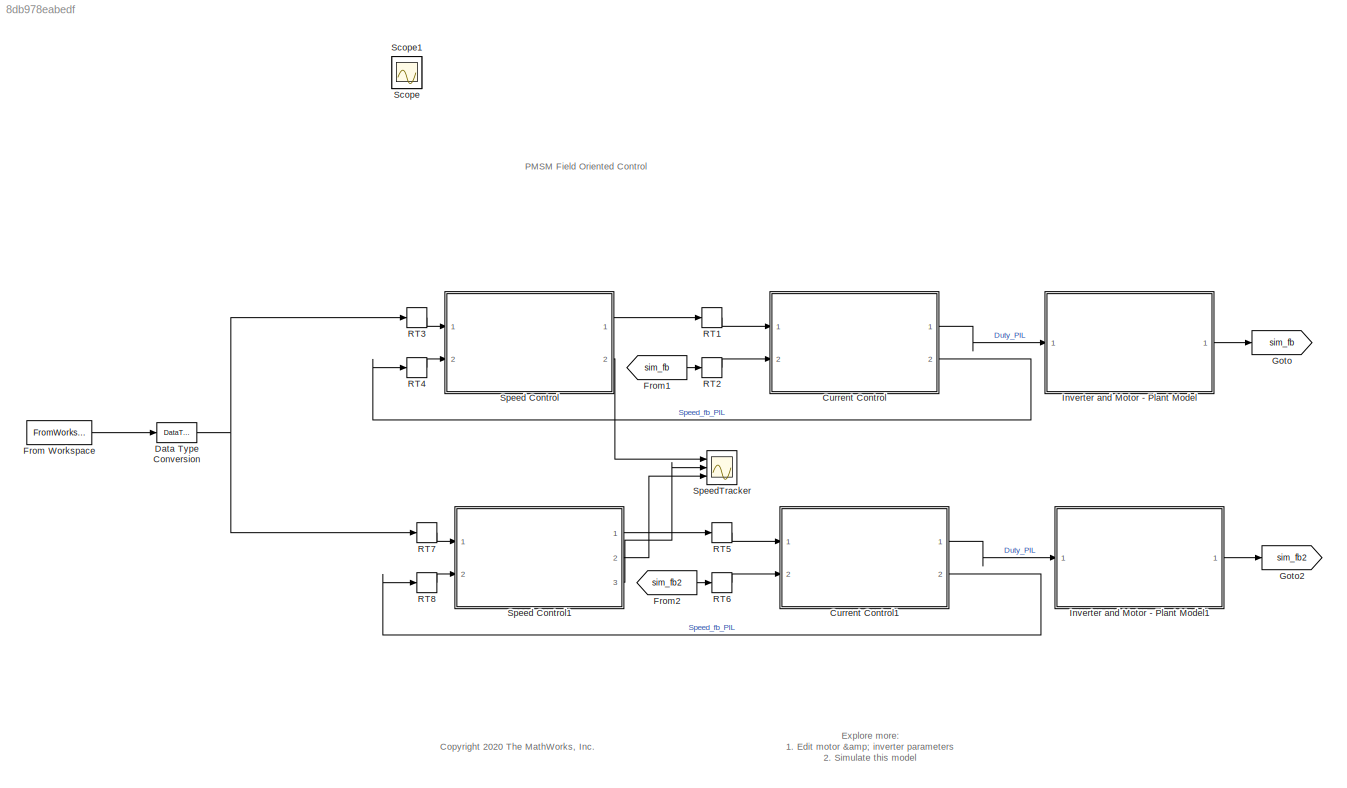
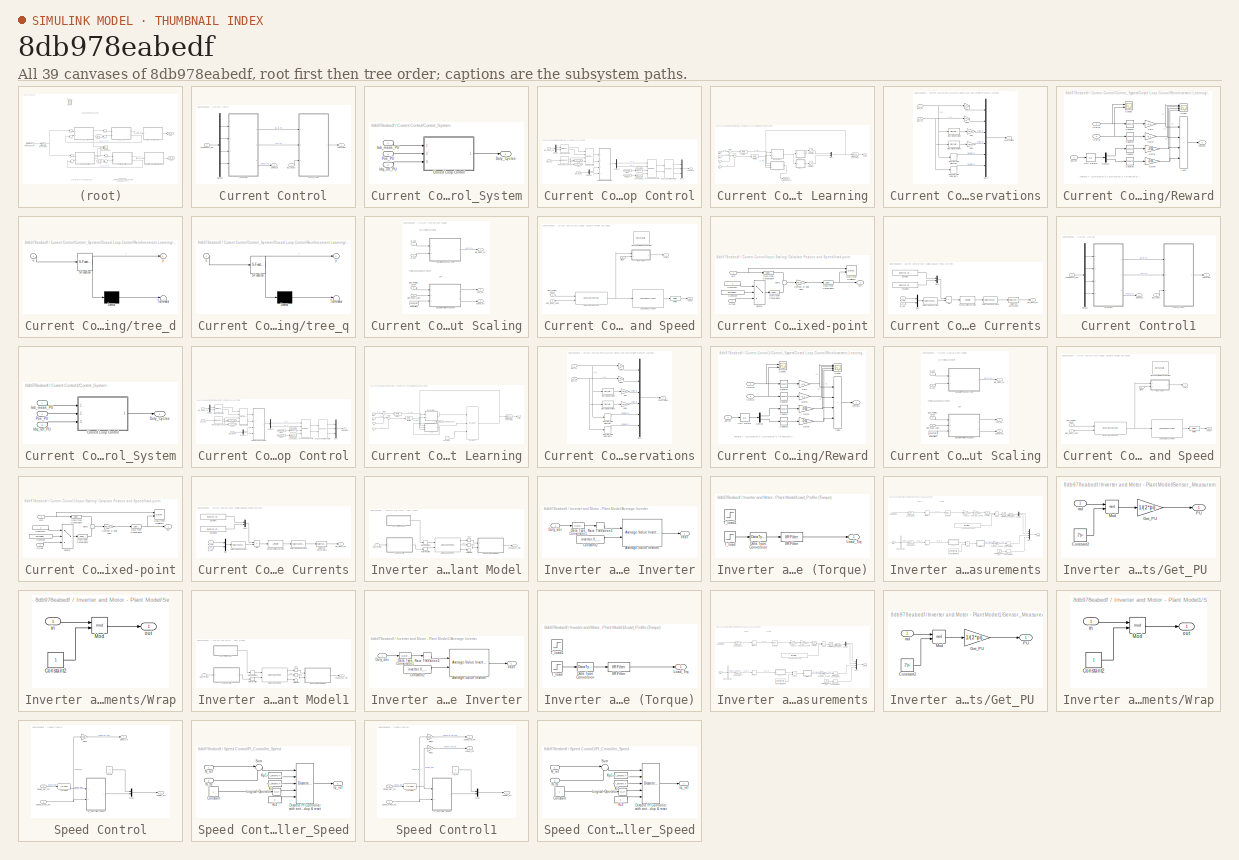
[diagram: thumbnail index - all 39 canvases of the model, root first then tree order]
MODEL slx_8db978eabedf
KIND model
CONFIG AbsTol = auto
CONFIG EnableMultiTasking = on
CONFIG FixedStep = auto
CONFIG MaxStep = auto
CONFIG MinStep = auto
CONFIG RelTol = 1e-3
CONFIG SampleTimeConstraint = Unconstrained
CONFIG SolverName = FixedStepDiscrete
CONFIG StartTime = 0.0
CONFIG StopTime = 6
BLOCK [SubSystem] Current Control
  Ports = [2, 2]
  RTWSystemCode = Reusable function
  RequestExecContextInheritance = off
  TreatAsAtomicUnit = on
BLOCK [SubSystem] Current Control/Control_System
  Ports = [3, 1]
  RequestExecContextInheritance = off
BLOCK [SubSystem] Current Control/Control_System/Closed Loop Control
  Ports = [3, 1]
  RequestExecContextInheritance = off
BLOCK [Reference] Current Control/Control_System/Closed Loop Control/Clarke Transform  REF=mcbcontrolslib/Clarke Transform
  Ports = [2, 2]
  SourceBlock = mcbcontrolslib/Clarke Transform
  SourceProductBaseCode = MT
  SourceType = Clarke Transform
BLOCK [DataTypeConversion] Current Control/Control_System/Closed Loop Control/Data Type Conversion
  RndMeth = Floor
  SaturateOnIntegerOverflow = off
BLOCK [DataTypeConversion] Current Control/Control_System/Closed Loop Control/Data Type Conversion1
  RndMeth = Floor
  SaturateOnIntegerOverflow = off
BLOCK [Demux] Current Control/Control_System/Closed Loop Control/Demux
  Outputs = 2
  Ports = [1, 2]
BLOCK [Demux] Current Control/Control_System/Closed Loop Control/Demux1
  Outputs = 2
  Ports = [1, 2]
BLOCK [Demux] Current Control/Control_System/Closed Loop Control/Demux2
  Outputs = 2
  Ports = [1, 2]
BLOCK [From] Current Control/Control_System/Closed Loop Control/From
  GotoTag = sinTheta
BLOCK [From] Current Control/Control_System/Closed Loop Control/From1
  GotoTag = cosTheta
BLOCK [Goto] Current Control/Control_System/Closed Loop Control/Goto
  GotoTag = sinTheta
BLOCK [Goto] Current Control/Control_System/Closed Loop Control/Goto1
  GotoTag = cosTheta
BLOCK [Inport] Current Control/Control_System/Closed Loop Control/Iab_meas_PU
BLOCK [Inport] Current Control/Control_System/Closed Loop Control/Idq_ref_PU
  Port = 3
BLOCK [Reference] Current Control/Control_System/Closed Loop Control/Inverse Park Transform  REF=mcbcontrolslib/Inverse Park Transform
  Ports = [4, 2]
  SourceBlock = mcbcontrolslib/Inverse Park Transform
  SourceProductBaseCode = MT
  SourceType = Inverse Park Transform
BLOCK [Mux] Current Control/Control_System/Closed Loop Control/Mux1
  DisplayOption = bar
  Inputs = 3
  Ports = [3, 1]
BLOCK [Reference] Current Control/Control_System/Closed Loop Control/Park Transform  REF=mcbcontrolslib/Park Transform
  Ports = [4, 2]
  SourceBlock = mcbcontrolslib/Park Transform
  SourceProductBaseCode = MT
  SourceType = Park Transform
BLOCK [Inport] Current Control/Control_System/Closed Loop Control/Pos_PU
  Port = 2
BLOCK [SubSystem] Current Control/Control_System/Closed Loop Control/Reinforcement Learning
  Ports = [4, 1]
  RequestExecContextInheritance = off
BLOCK [DataTypeConversion] Current Control/Control_System/Closed Loop Control/Reinforcement Learning/Data Type Conversion
  OutDataTypeStr = dataType
  RndMeth = Floor
  SaturateOnIntegerOverflow = off
BLOCK [Reference] Current Control/Control_System/Closed Loop Control/Reinforcement Learning/IIR Filter  REF=mcbcontrolslib/IIR Filter
  Ports = [1, 1]
  SourceBlock = mcbcontrolslib/IIR Filter
  SourceProductBaseCode = MT
  SourceType = IIR Filter
BLOCK [Reference] Current Control/Control_System/Closed Loop Control/Reinforcement Learning/IIR Filter1  REF=mcbcontrolslib/IIR Filter
  Ports = [1, 1]
  SourceBlock = mcbcontrolslib/IIR Filter
  SourceProductBaseCode = MT
  SourceType = IIR Filter
BLOCK [Mux] Current Control/Control_System/Closed Loop Control/Reinforcement Learning/Mux
  DisplayOption = bar
  Inputs = 2
  Ports = [2, 1]
BLOCK [SubSystem] Current Control/Control_System/Closed Loop Control/Reinforcement Learning/Observations
  Ports = [2, 1]
  RequestExecContextInheritance = off
BLOCK [Reference] Current Control/Control_System/Closed Loop Control/Reinforcement Learning/Observations/Discrete Derivative  REF=simulink/Discrete/Discrete Derivative
  Ports = [1, 1]
  SourceBlock = simulink/Discrete/Discrete Derivative
  SourceProductBaseCode = SL
  SourceType = Discrete Derivative
BLOCK [Reference] Current Control/Control_System/Closed Loop Control/Reinforcement Learning/Observations/Discrete Derivative1  REF=simulink/Discrete/Discrete Derivative
  Ports = [1, 1]
  SourceBlock = simulink/Discrete/Discrete Derivative
  SourceProductBaseCode = SL
  SourceType = Discrete Derivative
BLOCK [DiscreteIntegrator] Current Control/Control_System/Closed Loop Control/Reinforcement Learning/Observations/Discrete-Time Integrator
  ICPrevOutput = DiscIntNeverNeededParam
  ICPrevScaledInput = DiscIntNeverNeededParam
  InitialConditionSetting = Auto
  LowerSaturationLimit = -1
  OutDataTypeStr = Inherit: Inherit via back propagation
  Ports = [1, 1]
  SampleTime = -1
  SaturateOnIntegerOverflow = on
  UpperSaturationLimit = 1
BLOCK [DiscreteIntegrator] Current Control/Control_System/Closed Loop Control/Reinforcement Learning/Observations/Discrete-Time Integrator1
  ICPrevOutput = DiscIntNeverNeededParam
  ICPrevScaledInput = DiscIntNeverNeededParam
  InitialConditionSetting = Auto
  OutDataTypeStr = Inherit: Inherit via back propagation
  Ports = [1, 1]
  SampleTime = -1
  SaturateOnIntegerOverflow = on
BLOCK [Gain] Current Control/Control_System/Closed Loop Control/Reinforcement Learning/Observations/Gain
  Gain = 1e-5
  OutDataTypeStr = Inherit: Same as input
BLOCK [Gain] Current Control/Control_System/Closed Loop Control/Reinforcement Learning/Observations/Gain1
  Gain = 1e-5
  OutDataTypeStr = Inherit: Same as input
BLOCK [Gain] Current Control/Control_System/Closed Loop Control/Reinforcement Learning/Observations/Gain2
  Gain = 0.5
  OutDataTypeStr = Inherit: Same as input
BLOCK [Gain] Current Control/Control_System/Closed Loop Control/Reinforcement Learning/Observations/Gain3
  Gain = 0.5
  OutDataTypeStr = Inherit: Same as input
BLOCK [Mux] Current Control/Control_System/Closed Loop Control/Reinforcement Learning/Observations/Mux1
  DisplayOption = bar
  Inputs = 6
  Ports = [6, 1]
BLOCK [Inport] Current Control/Control_System/Closed Loop Control/Reinforcement Learning/Observations/id error
BLOCK [Inport] Current Control/Control_System/Closed Loop Control/Reinforcement Learning/Observations/iq error
  Port = 2
BLOCK [Outport] Current Control/Control_System/Closed Loop Control/Reinforcement Learning/Observations/observations
  VectorParamsAs1DForOutWhenUnconnected = off
BLOCK [SubSystem] Current Control/Control_System/Closed Loop Control/Reinforcement Learning/Reward
  Ports = [3, 1]
  RequestExecContextInheritance = off
BLOCK [Sum] Current Control/Control_System/Closed Loop Control/Reinforcement Learning/Reward/Add1
  IconShape = rectangular
  Inputs = ++++
  Ports = [4, 1]
BLOCK [Demux] Current Control/Control_System/Closed Loop Control/Reinforcement Learning/Reward/Demux
  Outputs = 2
  Ports = [1, 2]
BLOCK [Gain] Current Control/Control_System/Closed Loop Control/Reinforcement Learning/Reward/Gain
  Gain = -0.1
BLOCK [Gain] Current Control/Control_System/Closed Loop Control/Reinforcement Learning/Reward/Gain1
  Gain = -0.05
BLOCK [Gain] Current Control/Control_System/Closed Loop Control/Reinforcement Learning/Reward/Gain3
  Gain = -0.1
BLOCK [Gain] Current Control/Control_System/Closed Loop Control/Reinforcement Learning/Reward/Gain5
  Gain = -0.05
BLOCK [Scope] Current Control/Control_System/Closed Loop Control/Reinforcement Learning/Reward/Scope
  Floating = off
  NumInputPorts = 4
  Ports = [4]
  ScopeSpecificationString = Simulink.scopes.TimeScopeBlockCfg('CurrentConfiguration', extmgr.ConfigurationSet(extmgr.Configuration('Core','General UI',true),extmgr.Configuration('Core','Source UI',true),extmgr.Configuration('Sources','WiredSimulink',true,'DataLoggingVariableName','ScopeData2'),extmgr.Configuration('Visuals','Time Domain',true,'SerializedDisplays',{struct('MinYLimReal','-0.03868','MaxYLimReal','0.0043','YLabe...<+1518ch>
BLOCK [Scope] Current Control/Control_System/Closed Loop Control/Reinforcement Learning/Reward/Scope1
  Floating = off
  NumInputPorts = 2
  Ports = [2]
  ScopeSpecificationString = Simulink.scopes.TimeScopeBlockCfg('CurrentConfiguration', extmgr.ConfigurationSet(extmgr.Configuration('Core','General UI',true),extmgr.Configuration('Core','Source UI',true),extmgr.Configuration('Sources','WiredSimulink',true,'DataLoggingVariableName','ScopeData1'),extmgr.Configuration('Visuals','Time Domain',true,'SerializedDisplays',{struct('MinYLimReal','-0.23025','MaxYLimReal','0.24574','YLab...<+1474ch>
BLOCK [Math] Current Control/Control_System/Closed Loop Control/Reinforcement Learning/Reward/Square
  Operator = square
  Ports = [1, 1]
BLOCK [Math] Current Control/Control_System/Closed Loop Control/Reinforcement Learning/Reward/Square1
  Operator = square
  Ports = [1, 1]
BLOCK [Math] Current Control/Control_System/Closed Loop Control/Reinforcement Learning/Reward/Square2
  Operator = square
  Ports = [1, 1]
BLOCK [Math] Current Control/Control_System/Closed Loop Control/Reinforcement Learning/Reward/Square3
  Operator = square
  Ports = [1, 1]
BLOCK [UnitDelay] Current Control/Control_System/Closed Loop Control/Reinforcement Learning/Reward/Unit Delay2
  HasFrameUpgradeWarning = on
  SampleTime = -1
BLOCK [Inport] Current Control/Control_System/Closed Loop Control/Reinforcement Learning/Reward/action
  Port = 3
BLOCK [Inport] Current Control/Control_System/Closed Loop Control/Reinforcement Learning/Reward/id error
BLOCK [Inport] Current Control/Control_System/Closed Loop Control/Reinforcement Learning/Reward/iq error
  Port = 2
BLOCK [Outport] Current Control/Control_System/Closed Loop Control/Reinforcement Learning/Reward/reward
  VectorParamsAs1DForOutWhenUnconnected = off
BLOCK [Saturate] Current Control/Control_System/Closed Loop Control/Reinforcement Learning/Saturation
  LowerLimit = -1
  UpperLimit = 1
BLOCK [Saturate] Current Control/Control_System/Closed Loop Control/Reinforcement Learning/Saturation1
  LowerLimit = -1
  UpperLimit = 1
BLOCK [Sum] Current Control/Control_System/Closed Loop Control/Reinforcement Learning/Sum
  Inputs = |+-
  Ports = [2, 1]
BLOCK [Sum] Current Control/Control_System/Closed Loop Control/Reinforcement Learning/Sum1
  Inputs = |+-
  Ports = [2, 1]
BLOCK [ToWorkspace] Current Control/Control_System/Closed Loop Control/Reinforcement Learning/To Workspace1
  FixptAsFi = on
  MaxDataPoints = inf
  Ports = [1]
  SampleTime = -1
  Save2DSignal = 2-D array (concatenate along first dimension)
  VariableName = rewardtree
BLOCK [Outport] Current Control/Control_System/Closed Loop Control/Reinforcement Learning/action
BLOCK [Inport] Current Control/Control_System/Closed Loop Control/Reinforcement Learning/id
BLOCK [Inport] Current Control/Control_System/Closed Loop Control/Reinforcement Learning/id ref
  Port = 3
BLOCK [Inport] Current Control/Control_System/Closed Loop Control/Reinforcement Learning/iq
  Port = 2
BLOCK [Inport] Current Control/Control_System/Closed Loop Control/Reinforcement Learning/iq ref
  Port = 4
BLOCK [SubSystem] Current Control/Control_System/Closed Loop Control/Reinforcement Learning/tree_d
  ErrorFcn = Stateflow.Translate.translate
  PermitHierarchicalResolution = ExplicitOnly
  Ports = [1, 1]
  RequestExecContextInheritance = off
  SFBlockType = MATLAB Function
  TreatAsAtomicUnit = on
BLOCK [Demux] Current Control/Control_System/Closed Loop Control/Reinforcement Learning/tree_d/ Demux 
  Outputs = 1
  Ports = [1, 1]
BLOCK [S-Function] Current Control/Control_System/Closed Loop Control/Reinforcement Learning/tree_d/ SFunction 
  EnableBusSupport = on
  FunctionName = sf_sfun
  Parameters = coeff_d,index_d,intercept_d,threshold_d
  PortCounts = [1 2]
  Ports = [1, 2]
  SFcnIsStateOwnerBlock = off
  SFunctionDeploymentMode = off
  Tag = Stateflow S-Function 1
BLOCK [Terminator] Current Control/Control_System/Closed Loop Control/Reinforcement Learning/tree_d/ Terminator 
BLOCK [Inport] Current Control/Control_System/Closed Loop Control/Reinforcement Learning/tree_d/u
BLOCK [Outport] Current Control/Control_System/Closed Loop Control/Reinforcement Learning/tree_d/y
BLOCK [SubSystem] Current Control/Control_System/Closed Loop Control/Reinforcement Learning/tree_q
  ErrorFcn = Stateflow.Translate.translate
  PermitHierarchicalResolution = ExplicitOnly
  Ports = [1, 1]
  RequestExecContextInheritance = off
  SFBlockType = MATLAB Function
  TreatAsAtomicUnit = on
BLOCK [Demux] Current Control/Control_System/Closed Loop Control/Reinforcement Learning/tree_q/ Demux 
  Outputs = 1
  Ports = [1, 1]
BLOCK [S-Function] Current Control/Control_System/Closed Loop Control/Reinforcement Learning/tree_q/ SFunction 
  EnableBusSupport = on
  FunctionName = sf_sfun
  Parameters = coeff_q,index_q,intercept_q,threshold_q
  PortCounts = [1 2]
  Ports = [1, 2]
  SFcnIsStateOwnerBlock = off
  SFunctionDeploymentMode = off
  Tag = Stateflow S-Function 2
BLOCK [Terminator] Current Control/Control_System/Closed Loop Control/Reinforcement Learning/tree_q/ Terminator 
BLOCK [Inport] Current Control/Control_System/Closed Loop Control/Reinforcement Learning/tree_q/u
BLOCK [Outport] Current Control/Control_System/Closed Loop Control/Reinforcement Learning/tree_q/y
BLOCK [Reference] Current Control/Control_System/Closed Loop Control/Sine-Cosine Lookup  REF=mcbcontrolslib/Sine-Cosine Lookup
  Ports = [1, 2]
  SourceBlock = mcbcontrolslib/Sine-Cosine Lookup
  SourceProductBaseCode = MT
  SourceType = Sine-Cosine Lookup
BLOCK [Reference] Current Control/Control_System/Closed Loop Control/Space Vector Generator  REF=mcbcontrolslib/Space Vector Generator
  Ports = [2, 3]
  SourceBlock = mcbcontrolslib/Space Vector Generator
  SourceProductBaseCode = MT
  SourceType = Space Vector Generator
BLOCK [Outport] Current Control/Control_System/Closed Loop Control/Vabc in PU
  VectorParamsAs1DForOutWhenUnconnected = off
BLOCK [Outport] Current Control/Control_System/Duty_Cycles
  VectorParamsAs1DForOutWhenUnconnected = off
BLOCK [Inport] Current Control/Control_System/Iab_meas_PU
BLOCK [Inport] Current Control/Control_System/Idq_ref_PU
  Port = 3
BLOCK [Inport] Current Control/Control_System/Pos_PU
  Port = 2
BLOCK [Demux] Current Control/Demux1
  Ports = [1, 4]
BLOCK [Outport] Current Control/Duty Cycles
  InitialOutput = 0
  VectorParamsAs1DForOutWhenUnconnected = off
BLOCK [Inport] Current Control/Feedbacks_sim
  Port = 2
BLOCK [Inport] Current Control/Idq_ref_PU
BLOCK [SubSystem] Current Control/Input Scaling
  Ports = [4, 3]
  RequestExecContextInheritance = off
BLOCK [SubSystem] Current Control/Input Scaling/ Calculate Position and Speed
  Ports = [3, 2]
  RequestExecContextInheritance = off
BLOCK [Reference] Current Control/Input Scaling/ Calculate Position and Speed/IIR Filter  REF=mcbcontrolslib/IIR Filter
  Ports = [1, 1]
  SourceBlock = mcbcontrolslib/IIR Filter
  SourceProductBaseCode = MT
  SourceType = IIR Filter
BLOCK [Reference] Current Control/Input Scaling/ Calculate Position and Speed/Mechanical to Electrical Position  REF=mcbpositiondecoderlib/Mechanical to Electrical Position
  Commented = on
  Ports = [2, 1]
  SourceBlock = mcbpositiondecoderlib/Mechanical to Electrical Position
  SourceProductBaseCode = MT
  SourceType = Mechanical to Electrical Position
BLOCK [Inport] Current Control/Input Scaling/ Calculate Position and Speed/Offset
  Port = 3
BLOCK [Inport] Current Control/Input Scaling/ Calculate Position and Speed/QEP_Index_Latch
  Port = 2
BLOCK [Inport] Current Control/Input Scaling/ Calculate Position and Speed/QEP_Position_Count
BLOCK [Reference] Current Control/Input Scaling/ Calculate Position and Speed/Quadrature Decoder  REF=mcbpositiondecoderlib/Quadrature Decoder
  Ports = [2, 1]
  SourceBlock = mcbpositiondecoderlib/Quadrature Decoder
  SourceProductBaseCode = MT
  SourceType = Quadrature Decoder
BLOCK [Reference] Current Control/Input Scaling/ Calculate Position and Speed/Speed Measurement  REF=mcbpositiondecoderlib/Speed Measurement
  Ports = [1, 1]
  SourceBlock = mcbpositiondecoderlib/Speed Measurement
  SourceProductBaseCode = MT
  SourceType = Speed Measurement
BLOCK [Outport] Current Control/Input Scaling/ Calculate Position and Speed/Theta_e
  VectorParamsAs1DForOutWhenUnconnected = off
BLOCK [SubSystem] Current Control/Input Scaling/ Calculate Position and Speed/fixed-point
  Ports = [2, 1]
  RequestExecContextInheritance = off
  VariantControl = fixed-point
BLOCK [Constant] Current Control/Input Scaling/ Calculate Position and Speed/fixed-point/Constant
  OutDataTypeStr = uint8
  Value = MechOfstInputType
BLOCK [Constant] Current Control/Input Scaling/ Calculate Position and Speed/fixed-point/Constant1
  OutDataTypeStr = Inherit: Inherit via back propagation
  Value = 0
BLOCK [DataTypeConversion] Current Control/Input Scaling/ Calculate Position and Speed/fixed-point/Data Type Conversion1
  OutDataTypeStr = fixdt(0,32,maxAngleIn/2^32,0)
  RndMeth = Simplest
  SaturateOnIntegerOverflow = off
BLOCK [DataTypeConversion] Current Control/Input Scaling/ Calculate Position and Speed/fixed-point/Data Type Conversion2
  OutMax = maxAngleIn
  OutMin = 0
  RndMeth = Simplest
  SaturateOnIntegerOverflow = off
BLOCK [DataTypeConversion] Current Control/Input Scaling/ Calculate Position and Speed/fixed-point/Data Type Conversion4
  OutDataTypeStr = fixdt(0,32,maxAngleIn/2^32,0)
  RndMeth = Simplest
  SaturateOnIntegerOverflow = off
BLOCK [DataTypeDuplicate] Current Control/Input Scaling/ Calculate Position and Speed/fixed-point/Data Type Duplicate
  Ports = [2]
BLOCK [Gain] Current Control/Input Scaling/ Calculate Position and Speed/fixed-point/Number of pole pairs
  Gain = pmsm.p
  OutDataTypeStr = Inherit: Same as input
  RndMeth = Simplest
BLOCK [Inport] Current Control/Input Scaling/ Calculate Position and Speed/fixed-point/Offset
  Port = 2
BLOCK [Sum] Current Control/Input Scaling/ Calculate Position and Speed/fixed-point/Sum1
  Inputs = +-
  OutDataTypeStr = Inherit: Same as first input
  Ports = [2, 1]
  RndMeth = Simplest
BLOCK [Switch] Current Control/Input Scaling/ Calculate Position and Speed/fixed-point/Switch
  Criteria = u2 > Threshold
  InputSameDT = off
  OutDataTypeStr = Inherit: Inherit via back propagation
  SaturateOnIntegerOverflow = off
  Threshold = 1
BLOCK [Outport] Current Control/Input Scaling/ Calculate Position and Speed/fixed-point/ϴe
  VectorParamsAs1DForOutWhenUnconnected = off
BLOCK [Inport] Current Control/Input Scaling/ Calculate Position and Speed/fixed-point/ϴm
  OutMax = maxAngleIn
  OutMin = 0
BLOCK [Outport] Current Control/Input Scaling/ Calculate Position and Speed/speed
  Port = 2
  VectorParamsAs1DForOutWhenUnconnected = off
BLOCK [SubSystem] Current Control/Input Scaling/Calculate Phase Currents
  Ports = [2, 1]
  RequestExecContextInheritance = off
BLOCK [Sum] Current Control/Input Scaling/Calculate Phase Currents/Add
  IconShape = rectangular
  Inputs = -+
  Ports = [2, 1]
BLOCK [Constant] Current Control/Input Scaling/Calculate Phase Currents/Constant
  OutDataTypeStr = uint16
  Value = inverter.CtSensAOffset
BLOCK [Constant] Current Control/Input Scaling/Calculate Phase Currents/Constant1
  OutDataTypeStr = uint16
  Value = inverter.CtSensBOffset
BLOCK [DataTypeConversion] Current Control/Input Scaling/Calculate Phase Currents/Data Type Conversion
  ConvertRealWorld = Stored Integer (SI)
  OutDataTypeStr = int32
  RndMeth = Simplest
  SaturateOnIntegerOverflow = off
BLOCK [DataTypeConversion] Current Control/Input Scaling/Calculate Phase Currents/Data Type Conversion1
  OutDataTypeStr = dataType
  RndMeth = Simplest
  SaturateOnIntegerOverflow = off
BLOCK [DataTypeConversion] Current Control/Input Scaling/Calculate Phase Currents/Data Type Conversion3
  ConvertRealWorld = Stored Integer (SI)
  OutDataTypeStr = fixdt(1,32,17)
  RndMeth = Simplest
  SaturateOnIntegerOverflow = off
BLOCK [Inport] Current Control/Input Scaling/Calculate Phase Currents/Ia_ADC
BLOCK [Outport] Current Control/Input Scaling/Calculate Phase Currents/Iab_meas_PU
  VectorParamsAs1DForOutWhenUnconnected = off
BLOCK [Inport] Current Control/Input Scaling/Calculate Phase Currents/Ib_ADC
  Port = 2
BLOCK [Mux] Current Control/Input Scaling/Calculate Phase Currents/Mux
  DisplayOption = bar
  Inputs = 2
  Ports = [2, 1]
BLOCK [Mux] Current Control/Input Scaling/Calculate Phase Currents/Mux1
  DisplayOption = bar
  Inputs = 2
  Ports = [2, 1]
BLOCK [ArithShift] Current Control/Input Scaling/Calculate Phase Currents/Q17 per unit conversion
  BitShiftNumber = -6
  InputPortMap = u0
  Ports = [1, 1]
BLOCK [Inport] Current Control/Input Scaling/Ia_ADC
BLOCK [Outport] Current Control/Input Scaling/Iab_meas_PU
BLOCK [Inport] Current Control/Input Scaling/Ib_ADC
  Port = 2
BLOCK [Constant] Current Control/Input Scaling/IndexOffset
  OutDataTypeStr = dataType
  SampleTime = -1
  Value = pmsm.PositionOffset
BLOCK [Outport] Current Control/Input Scaling/Pos_PU
  Port = 2
BLOCK [Inport] Current Control/Input Scaling/QEP_Index_Latch
  Port = 4
BLOCK [Inport] Current Control/Input Scaling/QEP_Position_Count
  Port = 3
BLOCK [Outport] Current Control/Input Scaling/speed_PU
  Port = 3
BLOCK [Outport] Current Control/Speed_fb
  InitialOutput = 0
  Port = 2
  VectorParamsAs1DForOutWhenUnconnected = off
BLOCK [SubSystem] Current Control1
  Ports = [2, 2]
  RTWSystemCode = Reusable function
  RequestExecContextInheritance = off
  TreatAsAtomicUnit = on
BLOCK [SubSystem] Current Control1/Control_System
  Ports = [3, 1]
  RequestExecContextInheritance = off
BLOCK [SubSystem] Current Control1/Control_System/Closed Loop Control
  Ports = [3, 1]
  RequestExecContextInheritance = off
BLOCK [Reference] Current Control1/Control_System/Closed Loop Control/Clarke Transform  REF=mcbcontrolslib/Clarke Transform
  Ports = [2, 2]
  SourceBlock = mcbcontrolslib/Clarke Transform
  SourceProductBaseCode = MT
  SourceType = Clarke Transform
BLOCK [DataTypeConversion] Current Control1/Control_System/Closed Loop Control/Data Type Conversion
  RndMeth = Floor
  SaturateOnIntegerOverflow = off
BLOCK [DataTypeConversion] Current Control1/Control_System/Closed Loop Control/Data Type Conversion1
  RndMeth = Floor
  SaturateOnIntegerOverflow = off
BLOCK [Demux] Current Control1/Control_System/Closed Loop Control/Demux
  Outputs = 2
  Ports = [1, 2]
BLOCK [Demux] Current Control1/Control_System/Closed Loop Control/Demux1
  Outputs = 2
  Ports = [1, 2]
BLOCK [Demux] Current Control1/Control_System/Closed Loop Control/Demux2
  Outputs = 2
  Ports = [1, 2]
BLOCK [From] Current Control1/Control_System/Closed Loop Control/From
  GotoTag = sinTheta
BLOCK [From] Current Control1/Control_System/Closed Loop Control/From1
  GotoTag = cosTheta
BLOCK [Goto] Current Control1/Control_System/Closed Loop Control/Goto
  GotoTag = sinTheta
BLOCK [Goto] Current Control1/Control_System/Closed Loop Control/Goto1
  GotoTag = cosTheta
BLOCK [Inport] Current Control1/Control_System/Closed Loop Control/Iab_meas_PU
BLOCK [Inport] Current Control1/Control_System/Closed Loop Control/Idq_ref_PU
  Port = 3
BLOCK [Reference] Current Control1/Control_System/Closed Loop Control/Inverse Park Transform  REF=mcbcontrolslib/Inverse Park Transform
  Ports = [4, 2]
  SourceBlock = mcbcontrolslib/Inverse Park Transform
  SourceProductBaseCode = MT
  SourceType = Inverse Park Transform
BLOCK [Mux] Current Control1/Control_System/Closed Loop Control/Mux1
  DisplayOption = bar
  Inputs = 3
  Ports = [3, 1]
BLOCK [Reference] Current Control1/Control_System/Closed Loop Control/Park Transform  REF=mcbcontrolslib/Park Transform
  Ports = [4, 2]
  SourceBlock = mcbcontrolslib/Park Transform
  SourceProductBaseCode = MT
  SourceType = Park Transform
BLOCK [Inport] Current Control1/Control_System/Closed Loop Control/Pos_PU
  Port = 2
BLOCK [SubSystem] Current Control1/Control_System/Closed Loop Control/Reinforcement Learning
  Ports = [4, 1]
  RequestExecContextInheritance = off
BLOCK [Constant] Current Control1/Control_System/Closed Loop Control/Reinforcement Learning/Constant
  Value = 0
BLOCK [DataTypeConversion] Current Control1/Control_System/Closed Loop Control/Reinforcement Learning/Data Type Conversion
  OutDataTypeStr = dataType
  RndMeth = Floor
  SaturateOnIntegerOverflow = off
BLOCK [Reference] Current Control1/Control_System/Closed Loop Control/Reinforcement Learning/IIR Filter  REF=mcbcontrolslib/IIR Filter
  Ports = [1, 1]
  SourceBlock = mcbcontrolslib/IIR Filter
  SourceProductBaseCode = MT
  SourceType = IIR Filter
BLOCK [Reference] Current Control1/Control_System/Closed Loop Control/Reinforcement Learning/IIR Filter1  REF=mcbcontrolslib/IIR Filter
  Ports = [1, 1]
  SourceBlock = mcbcontrolslib/IIR Filter
  SourceProductBaseCode = MT
  SourceType = IIR Filter
BLOCK [SubSystem] Current Control1/Control_System/Closed Loop Control/Reinforcement Learning/Observations
  Ports = [2, 1]
  RequestExecContextInheritance = off
BLOCK [Reference] Current Control1/Control_System/Closed Loop Control/Reinforcement Learning/Observations/Discrete Derivative  REF=simulink/Discrete/Discrete Derivative
  Ports = [1, 1]
  SourceBlock = simulink/Discrete/Discrete Derivative
  SourceProductBaseCode = SL
  SourceType = Discrete Derivative
BLOCK [Reference] Current Control1/Control_System/Closed Loop Control/Reinforcement Learning/Observations/Discrete Derivative1  REF=simulink/Discrete/Discrete Derivative
  Ports = [1, 1]
  SourceBlock = simulink/Discrete/Discrete Derivative
  SourceProductBaseCode = SL
  SourceType = Discrete Derivative
BLOCK [DiscreteIntegrator] Current Control1/Control_System/Closed Loop Control/Reinforcement Learning/Observations/Discrete-Time Integrator
  ICPrevOutput = DiscIntNeverNeededParam
  ICPrevScaledInput = DiscIntNeverNeededParam
  InitialConditionSetting = Auto
  LowerSaturationLimit = -1
  OutDataTypeStr = Inherit: Inherit via back propagation
  Ports = [1, 1]
  SampleTime = -1
  SaturateOnIntegerOverflow = on
  UpperSaturationLimit = 1
BLOCK [DiscreteIntegrator] Current Control1/Control_System/Closed Loop Control/Reinforcement Learning/Observations/Discrete-Time Integrator1
  ICPrevOutput = DiscIntNeverNeededParam
  ICPrevScaledInput = DiscIntNeverNeededParam
  InitialConditionSetting = Auto
  OutDataTypeStr = Inherit: Inherit via back propagation
  Ports = [1, 1]
  SampleTime = -1
  SaturateOnIntegerOverflow = on
BLOCK [Gain] Current Control1/Control_System/Closed Loop Control/Reinforcement Learning/Observations/Gain
  Gain = 1e-5
  OutDataTypeStr = Inherit: Same as input
BLOCK [Gain] Current Control1/Control_System/Closed Loop Control/Reinforcement Learning/Observations/Gain1
  Gain = 1e-5
  OutDataTypeStr = Inherit: Same as input
BLOCK [Gain] Current Control1/Control_System/Closed Loop Control/Reinforcement Learning/Observations/Gain2
  Gain = 0.5
  OutDataTypeStr = Inherit: Same as input
BLOCK [Gain] Current Control1/Control_System/Closed Loop Control/Reinforcement Learning/Observations/Gain3
  Gain = 0.5
  OutDataTypeStr = Inherit: Same as input
BLOCK [Mux] Current Control1/Control_System/Closed Loop Control/Reinforcement Learning/Observations/Mux1
  DisplayOption = bar
  Inputs = 6
  Ports = [6, 1]
BLOCK [Inport] Current Control1/Control_System/Closed Loop Control/Reinforcement Learning/Observations/id error
BLOCK [Inport] Current Control1/Control_System/Closed Loop Control/Reinforcement Learning/Observations/iq error
  Port = 2
BLOCK [Outport] Current Control1/Control_System/Closed Loop Control/Reinforcement Learning/Observations/observations
  VectorParamsAs1DForOutWhenUnconnected = off
BLOCK [Reference] Current Control1/Control_System/Closed Loop Control/Reinforcement Learning/RL Agent  REF=rllib/RL Agent
  Ports = [3, 1]
  SourceBlock = rllib/RL Agent
  SourceProductName = Reinforcement Learning
  SourceType = RL Agent
BLOCK [SubSystem] Current Control1/Control_System/Closed Loop Control/Reinforcement Learning/Reward
  Ports = [3, 1]
  RequestExecContextInheritance = off
BLOCK [Sum] Current Control1/Control_System/Closed Loop Control/Reinforcement Learning/Reward/Add1
  IconShape = rectangular
  Inputs = ++++
  Ports = [4, 1]
BLOCK [Demux] Current Control1/Control_System/Closed Loop Control/Reinforcement Learning/Reward/Demux
  Outputs = 2
  Ports = [1, 2]
BLOCK [Gain] Current Control1/Control_System/Closed Loop Control/Reinforcement Learning/Reward/Gain
  Gain = -0.1
BLOCK [Gain] Current Control1/Control_System/Closed Loop Control/Reinforcement Learning/Reward/Gain1
  Gain = -0.05
BLOCK [Gain] Current Control1/Control_System/Closed Loop Control/Reinforcement Learning/Reward/Gain3
  Gain = -0.1
BLOCK [Gain] Current Control1/Control_System/Closed Loop Control/Reinforcement Learning/Reward/Gain5
  Gain = -0.05
BLOCK [Scope] Current Control1/Control_System/Closed Loop Control/Reinforcement Learning/Reward/Scope
  Floating = off
  NumInputPorts = 4
  Ports = [4]
  ScopeSpecificationString = Simulink.scopes.TimeScopeBlockCfg('CurrentConfiguration', extmgr.ConfigurationSet(extmgr.Configuration('Core','General UI',true),extmgr.Configuration('Core','Source UI',true),extmgr.Configuration('Sources','WiredSimulink',true,'DataLoggingVariableName','ScopeData2'),extmgr.Configuration('Visuals','Time Domain',true,'SerializedDisplays',{struct('MinYLimReal','-0.03868','MaxYLimReal','0.0043','YLabe...<+1518ch>
BLOCK [Scope] Current Control1/Control_System/Closed Loop Control/Reinforcement Learning/Reward/Scope1
  Floating = off
  NumInputPorts = 2
  Ports = [2]
  ScopeSpecificationString = Simulink.scopes.TimeScopeBlockCfg('CurrentConfiguration', extmgr.ConfigurationSet(extmgr.Configuration('Core','General UI',true),extmgr.Configuration('Core','Source UI',true),extmgr.Configuration('Sources','WiredSimulink',true,'DataLoggingVariableName','ScopeData1'),extmgr.Configuration('Visuals','Time Domain',true,'SerializedDisplays',{struct('MinYLimReal','-0.23025','MaxYLimReal','0.24574','YLab...<+1474ch>
BLOCK [Math] Current Control1/Control_System/Closed Loop Control/Reinforcement Learning/Reward/Square
  Operator = square
  Ports = [1, 1]
BLOCK [Math] Current Control1/Control_System/Closed Loop Control/Reinforcement Learning/Reward/Square1
  Operator = square
  Ports = [1, 1]
BLOCK [Math] Current Control1/Control_System/Closed Loop Control/Reinforcement Learning/Reward/Square2
  Operator = square
  Ports = [1, 1]
BLOCK [Math] Current Control1/Control_System/Closed Loop Control/Reinforcement Learning/Reward/Square3
  Operator = square
  Ports = [1, 1]
BLOCK [UnitDelay] Current Control1/Control_System/Closed Loop Control/Reinforcement Learning/Reward/Unit Delay2
  HasFrameUpgradeWarning = on
  SampleTime = -1
BLOCK [Inport] Current Control1/Control_System/Closed Loop Control/Reinforcement Learning/Reward/action
  Port = 3
BLOCK [Inport] Current Control1/Control_System/Closed Loop Control/Reinforcement Learning/Reward/id error
BLOCK [Inport] Current Control1/Control_System/Closed Loop Control/Reinforcement Learning/Reward/iq error
  Port = 2
BLOCK [Outport] Current Control1/Control_System/Closed Loop Control/Reinforcement Learning/Reward/reward
  VectorParamsAs1DForOutWhenUnconnected = off
BLOCK [Sum] Current Control1/Control_System/Closed Loop Control/Reinforcement Learning/Sum
  Inputs = |+-
  Ports = [2, 1]
BLOCK [Sum] Current Control1/Control_System/Closed Loop Control/Reinforcement Learning/Sum1
  Inputs = |+-
  Ports = [2, 1]
BLOCK [ToWorkspace] Current Control1/Control_System/Closed Loop Control/Reinforcement Learning/To Workspace1
  FixptAsFi = on
  MaxDataPoints = inf
  Ports = [1]
  SampleTime = -1
  Save2DSignal = 2-D array (concatenate along first dimension)
  VariableName = rewardnet
BLOCK [Outport] Current Control1/Control_System/Closed Loop Control/Reinforcement Learning/action
BLOCK [Inport] Current Control1/Control_System/Closed Loop Control/Reinforcement Learning/id
BLOCK [Inport] Current Control1/Control_System/Closed Loop Control/Reinforcement Learning/id ref
  Port = 3
BLOCK [Inport] Current Control1/Control_System/Closed Loop Control/Reinforcement Learning/iq
  Port = 2
BLOCK [Inport] Current Control1/Control_System/Closed Loop Control/Reinforcement Learning/iq ref
  Port = 4
BLOCK [Reference] Current Control1/Control_System/Closed Loop Control/Sine-Cosine Lookup  REF=mcbcontrolslib/Sine-Cosine Lookup
  Ports = [1, 2]
  SourceBlock = mcbcontrolslib/Sine-Cosine Lookup
  SourceProductBaseCode = MT
  SourceType = Sine-Cosine Lookup
BLOCK [Reference] Current Control1/Control_System/Closed Loop Control/Space Vector Generator  REF=mcbcontrolslib/Space Vector Generator
  Ports = [2, 3]
  SourceBlock = mcbcontrolslib/Space Vector Generator
  SourceProductBaseCode = MT
  SourceType = Space Vector Generator
BLOCK [Outport] Current Control1/Control_System/Closed Loop Control/Vabc in PU
  VectorParamsAs1DForOutWhenUnconnected = off
BLOCK [Outport] Current Control1/Control_System/Duty_Cycles
  VectorParamsAs1DForOutWhenUnconnected = off
BLOCK [Inport] Current Control1/Control_System/Iab_meas_PU
BLOCK [Inport] Current Control1/Control_System/Idq_ref_PU
  Port = 3
BLOCK [Inport] Current Control1/Control_System/Pos_PU
  Port = 2
BLOCK [Demux] Current Control1/Demux1
  Ports = [1, 4]
BLOCK [Outport] Current Control1/Duty Cycles
  InitialOutput = 0
  VectorParamsAs1DForOutWhenUnconnected = off
BLOCK [Inport] Current Control1/Feedbacks_sim
  Port = 2
BLOCK [Inport] Current Control1/Idq_ref_PU
BLOCK [SubSystem] Current Control1/Input Scaling
  Ports = [4, 3]
  RequestExecContextInheritance = off
BLOCK [SubSystem] Current Control1/Input Scaling/ Calculate Position and Speed
  Ports = [3, 2]
  RequestExecContextInheritance = off
BLOCK [Reference] Current Control1/Input Scaling/ Calculate Position and Speed/IIR Filter  REF=mcbcontrolslib/IIR Filter
  Ports = [1, 1]
  SourceBlock = mcbcontrolslib/IIR Filter
  SourceProductBaseCode = MT
  SourceType = IIR Filter
BLOCK [Reference] Current Control1/Input Scaling/ Calculate Position and Speed/Mechanical to Electrical Position  REF=mcbpositiondecoderlib/Mechanical to Electrical Position
  Commented = on
  Ports = [2, 1]
  SourceBlock = mcbpositiondecoderlib/Mechanical to Electrical Position
  SourceProductBaseCode = MT
  SourceType = Mechanical to Electrical Position
BLOCK [Inport] Current Control1/Input Scaling/ Calculate Position and Speed/Offset
  Port = 3
BLOCK [Inport] Current Control1/Input Scaling/ Calculate Position and Speed/QEP_Index_Latch
  Port = 2
BLOCK [Inport] Current Control1/Input Scaling/ Calculate Position and Speed/QEP_Position_Count
BLOCK [Reference] Current Control1/Input Scaling/ Calculate Position and Speed/Quadrature Decoder  REF=mcbpositiondecoderlib/Quadrature Decoder
  Ports = [2, 1]
  SourceBlock = mcbpositiondecoderlib/Quadrature Decoder
  SourceProductBaseCode = MT
  SourceType = Quadrature Decoder
BLOCK [Reference] Current Control1/Input Scaling/ Calculate Position and Speed/Speed Measurement  REF=mcbpositiondecoderlib/Speed Measurement
  Ports = [1, 1]
  SourceBlock = mcbpositiondecoderlib/Speed Measurement
  SourceProductBaseCode = MT
  SourceType = Speed Measurement
BLOCK [Outport] Current Control1/Input Scaling/ Calculate Position and Speed/Theta_e
  VectorParamsAs1DForOutWhenUnconnected = off
BLOCK [SubSystem] Current Control1/Input Scaling/ Calculate Position and Speed/fixed-point
  Ports = [2, 1]
  RequestExecContextInheritance = off
  VariantControl = fixed-point
BLOCK [Constant] Current Control1/Input Scaling/ Calculate Position and Speed/fixed-point/Constant
  OutDataTypeStr = uint8
  Value = MechOfstInputType
BLOCK [Constant] Current Control1/Input Scaling/ Calculate Position and Speed/fixed-point/Constant1
  OutDataTypeStr = Inherit: Inherit via back propagation
  Value = 0
BLOCK [DataTypeConversion] Current Control1/Input Scaling/ Calculate Position and Speed/fixed-point/Data Type Conversion1
  OutDataTypeStr = fixdt(0,32,maxAngleIn/2^32,0)
  RndMeth = Simplest
  SaturateOnIntegerOverflow = off
BLOCK [DataTypeConversion] Current Control1/Input Scaling/ Calculate Position and Speed/fixed-point/Data Type Conversion2
  OutMax = maxAngleIn
  OutMin = 0
  RndMeth = Simplest
  SaturateOnIntegerOverflow = off
BLOCK [DataTypeConversion] Current Control1/Input Scaling/ Calculate Position and Speed/fixed-point/Data Type Conversion4
  OutDataTypeStr = fixdt(0,32,maxAngleIn/2^32,0)
  RndMeth = Simplest
  SaturateOnIntegerOverflow = off
BLOCK [DataTypeDuplicate] Current Control1/Input Scaling/ Calculate Position and Speed/fixed-point/Data Type Duplicate
  Ports = [2]
BLOCK [Gain] Current Control1/Input Scaling/ Calculate Position and Speed/fixed-point/Number of pole pairs
  Gain = pmsm.p
  OutDataTypeStr = Inherit: Same as input
  RndMeth = Simplest
BLOCK [Inport] Current Control1/Input Scaling/ Calculate Position and Speed/fixed-point/Offset
  Port = 2
BLOCK [Sum] Current Control1/Input Scaling/ Calculate Position and Speed/fixed-point/Sum1
  Inputs = +-
  OutDataTypeStr = Inherit: Same as first input
  Ports = [2, 1]
  RndMeth = Simplest
BLOCK [Switch] Current Control1/Input Scaling/ Calculate Position and Speed/fixed-point/Switch
  Criteria = u2 > Threshold
  InputSameDT = off
  OutDataTypeStr = Inherit: Inherit via back propagation
  SaturateOnIntegerOverflow = off
  Threshold = 1
BLOCK [Outport] Current Control1/Input Scaling/ Calculate Position and Speed/fixed-point/ϴe
  VectorParamsAs1DForOutWhenUnconnected = off
BLOCK [Inport] Current Control1/Input Scaling/ Calculate Position and Speed/fixed-point/ϴm
  OutMax = maxAngleIn
  OutMin = 0
BLOCK [Outport] Current Control1/Input Scaling/ Calculate Position and Speed/speed
  Port = 2
  VectorParamsAs1DForOutWhenUnconnected = off
BLOCK [SubSystem] Current Control1/Input Scaling/Calculate Phase Currents
  Ports = [2, 1]
  RequestExecContextInheritance = off
BLOCK [Sum] Current Control1/Input Scaling/Calculate Phase Currents/Add
  IconShape = rectangular
  Inputs = -+
  Ports = [2, 1]
BLOCK [Constant] Current Control1/Input Scaling/Calculate Phase Currents/Constant
  OutDataTypeStr = uint16
  Value = inverter.CtSensAOffset
BLOCK [Constant] Current Control1/Input Scaling/Calculate Phase Currents/Constant1
  OutDataTypeStr = uint16
  Value = inverter.CtSensBOffset
BLOCK [DataTypeConversion] Current Control1/Input Scaling/Calculate Phase Currents/Data Type Conversion
  ConvertRealWorld = Stored Integer (SI)
  OutDataTypeStr = int32
  RndMeth = Simplest
  SaturateOnIntegerOverflow = off
BLOCK [DataTypeConversion] Current Control1/Input Scaling/Calculate Phase Currents/Data Type Conversion1
  OutDataTypeStr = dataType
  RndMeth = Simplest
  SaturateOnIntegerOverflow = off
BLOCK [DataTypeConversion] Current Control1/Input Scaling/Calculate Phase Currents/Data Type Conversion3
  ConvertRealWorld = Stored Integer (SI)
  OutDataTypeStr = fixdt(1,32,17)
  RndMeth = Simplest
  SaturateOnIntegerOverflow = off
BLOCK [Inport] Current Control1/Input Scaling/Calculate Phase Currents/Ia_ADC
BLOCK [Outport] Current Control1/Input Scaling/Calculate Phase Currents/Iab_meas_PU
  VectorParamsAs1DForOutWhenUnconnected = off
BLOCK [Inport] Current Control1/Input Scaling/Calculate Phase Currents/Ib_ADC
  Port = 2
BLOCK [Mux] Current Control1/Input Scaling/Calculate Phase Currents/Mux
  DisplayOption = bar
  Inputs = 2
  Ports = [2, 1]
BLOCK [Mux] Current Control1/Input Scaling/Calculate Phase Currents/Mux1
  DisplayOption = bar
  Inputs = 2
  Ports = [2, 1]
BLOCK [ArithShift] Current Control1/Input Scaling/Calculate Phase Currents/Q17 per unit conversion
  BitShiftNumber = -6
  InputPortMap = u0
  Ports = [1, 1]
BLOCK [Inport] Current Control1/Input Scaling/Ia_ADC
BLOCK [Outport] Current Control1/Input Scaling/Iab_meas_PU
BLOCK [Inport] Current Control1/Input Scaling/Ib_ADC
  Port = 2
BLOCK [Constant] Current Control1/Input Scaling/IndexOffset
  OutDataTypeStr = dataType
  SampleTime = -1
  Value = pmsm.PositionOffset
BLOCK [Outport] Current Control1/Input Scaling/Pos_PU
  Port = 2
BLOCK [Inport] Current Control1/Input Scaling/QEP_Index_Latch
  Port = 4
BLOCK [Inport] Current Control1/Input Scaling/QEP_Position_Count
  Port = 3
BLOCK [Outport] Current Control1/Input Scaling/speed_PU
  Port = 3
BLOCK [Outport] Current Control1/Speed_fb
  InitialOutput = 0
  Port = 2
  VectorParamsAs1DForOutWhenUnconnected = off
BLOCK [DataTypeConversion] Data Type Conversion
  OutDataTypeStr = dataType
  RndMeth = Floor
  SaturateOnIntegerOverflow = off
BLOCK [FromWorkspace] From Workspace
  SampleTime = Ts_speed
  VariableName = testref
BLOCK [From] From1
  GotoTag = sim_fb
BLOCK [From] From2
  GotoTag = sim_fb2
BLOCK [Goto] Goto
  GotoTag = sim_fb
BLOCK [Goto] Goto2
  GotoTag = sim_fb2
BLOCK [SubSystem] Inverter and Motor - Plant Model
  Ports = [1, 1]
  RTWSystemCode = Reusable function
  RequestExecContextInheritance = off
BLOCK [SubSystem] Inverter and Motor - Plant Model/Average Inverter
  Ports = [1, 1]
  RequestExecContextInheritance = off
BLOCK [Reference] Inverter and Motor - Plant Model/Average Inverter/Average-Value Inverter  REF=mcbplantlib/Average-Value Inverter
  Ports = [2, 1]
  SourceBlock = mcbplantlib/Average-Value Inverter
  SourceProductBaseCode = MT
  SourceType = Average-Value Inverter
BLOCK [Constant] Inverter and Motor - Plant Model/Average Inverter/Constant2
  OutDataTypeStr = single
  SampleTime = -1
  Value = inverter.V_dc
BLOCK [DataTypeConversion] Inverter and Motor - Plant Model/Average Inverter/Data Type Conversion1
  OutDataTypeStr = single
  RndMeth = Simplest
  SaturateOnIntegerOverflow = off
BLOCK [Inport] Inverter and Motor - Plant Model/Average Inverter/Duty_abc
BLOCK [RateTransition] Inverter and Motor - Plant Model/Average Inverter/Rate Transition3
  Deterministic = off
  OutPortSampleTime = Ts_inverter
BLOCK [Outport] Inverter and Motor - Plant Model/Average Inverter/Vabc
  VectorParamsAs1DForOutWhenUnconnected = off
BLOCK [Inport] Inverter and Motor - Plant Model/Duty_Cycles
BLOCK [Outport] Inverter and Motor - Plant Model/Feedbacks_sim
  VectorParamsAs1DForOutWhenUnconnected = off
BLOCK [SubSystem] Inverter and Motor - Plant Model/Load_Profile (Torque)
  Ports = [0, 1]
  RequestExecContextInheritance = off
BLOCK [DataTypeConversion] Inverter and Motor - Plant Model/Load_Profile (Torque)/Data Type Conversion
  OutDataTypeStr = single
  RndMeth = Floor
  SaturateOnIntegerOverflow = off
BLOCK [Reference] Inverter and Motor - Plant Model/Load_Profile (Torque)/IIR Filter  REF=mcbcontrolslib/IIR Filter
  Ports = [1, 1]
  SourceBlock = mcbcontrolslib/IIR Filter
  SourceProductBaseCode = MT
  SourceType = IIR Filter
BLOCK [Outport] Inverter and Motor - Plant Model/Load_Profile (Torque)/Load_Trq
  VectorParamsAs1DForOutWhenUnconnected = off
BLOCK [Step] Inverter and Motor - Plant Model/Load_Profile (Torque)/T_load
  After = 0
  SampleTime = Ts_simulink
  Time = 100
BLOCK [Step] Inverter and Motor - Plant Model/Load_Profile (Torque)/T_load1
  After = 0.05*pmsm.T_rated
  Before = 0.05*pmsm.T_rated
  Commented = on
  SampleTime = Ts_simulink
  Time = 0.8
BLOCK [RateTransition] Inverter and Motor - Plant Model/RT1
  Deterministic = off
  OutPortSampleTime = Ts_simulink
BLOCK [RateTransition] Inverter and Motor - Plant Model/RT3
  Deterministic = off
  OutPortSampleTime = Ts_simulink
BLOCK [RateTransition] Inverter and Motor - Plant Model/Rate Transition
  Deterministic = off
  OutPortSampleTime = Ts_motor
BLOCK [RateTransition] Inverter and Motor - Plant Model/Rate Transition1
  Deterministic = off
  OutPortSampleTime = Ts_motor
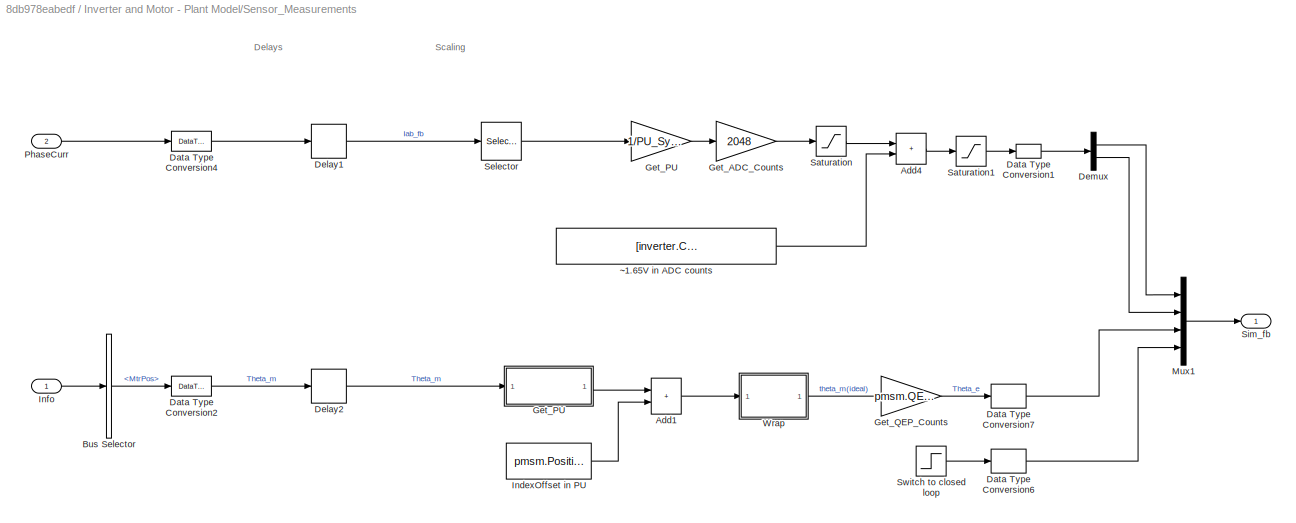
BLOCK [SubSystem] Inverter and Motor - Plant Model/Sensor_Measurements
  Ports = [2, 1]
  RequestExecContextInheritance = off
BLOCK [Sum] Inverter and Motor - Plant Model/Sensor_Measurements/Add1
  IconShape = rectangular
  Ports = [2, 1]
  RndMeth = Simplest
BLOCK [Sum] Inverter and Motor - Plant Model/Sensor_Measurements/Add4
  IconShape = rectangular
  OutDataTypeStr = uint16
  Ports = [2, 1]
BLOCK [BusSelector] Inverter and Motor - Plant Model/Sensor_Measurements/Bus Selector
  OutputSignals = MtrPos
  Ports = [1, 1]
BLOCK [DataTypeConversion] Inverter and Motor - Plant Model/Sensor_Measurements/Data Type Conversion1
  OutDataTypeStr = uint16
  RndMeth = Floor
  SaturateOnIntegerOverflow = off
BLOCK [DataTypeConversion] Inverter and Motor - Plant Model/Sensor_Measurements/Data Type Conversion2
  OutDataTypeStr = single
  RndMeth = Simplest
  SaturateOnIntegerOverflow = off
BLOCK [DataTypeConversion] Inverter and Motor - Plant Model/Sensor_Measurements/Data Type Conversion4
  OutDataTypeStr = single
  RndMeth = Simplest
  SaturateOnIntegerOverflow = off
BLOCK [DataTypeConversion] Inverter and Motor - Plant Model/Sensor_Measurements/Data Type Conversion6
  OutDataTypeStr = uint16
  RndMeth = Simplest
  SaturateOnIntegerOverflow = off
BLOCK [DataTypeConversion] Inverter and Motor - Plant Model/Sensor_Measurements/Data Type Conversion7
  OutDataTypeStr = uint16
  RndMeth = Simplest
  SaturateOnIntegerOverflow = off
BLOCK [Delay] Inverter and Motor - Plant Model/Sensor_Measurements/Delay1
  DelayLength = PI_params.delay_Currents
  InputPortMap = u0
  Ports = [1, 1]
BLOCK [Delay] Inverter and Motor - Plant Model/Sensor_Measurements/Delay2
  DelayLength = PI_params.delay_Position
  InputPortMap = u0
  Ports = [1, 1]
BLOCK [Demux] Inverter and Motor - Plant Model/Sensor_Measurements/Demux
  Outputs = 2
  Ports = [1, 2]
BLOCK [Gain] Inverter and Motor - Plant Model/Sensor_Measurements/Get_ADC_Counts
  Gain = 2048
  OutDataTypeStr = Inherit: Same as input
  RndMeth = Simplest
BLOCK [Gain] Inverter and Motor - Plant Model/Sensor_Measurements/Get_PU
  Gain = 1/PU_System.I_base
  RndMeth = Simplest
BLOCK [SubSystem] Inverter and Motor - Plant Model/Sensor_Measurements/Get_PU 
  Ports = [1, 1]
  RequestExecContextInheritance = off
BLOCK [Constant] Inverter and Motor - Plant Model/Sensor_Measurements/Get_PU /Constant2
  OutDataTypeStr = single
  SampleTime = -1
  Value = 2*pi
BLOCK [Gain] Inverter and Motor - Plant Model/Sensor_Measurements/Get_PU /Get_PU
  Gain = 1/(2*pi)
  OutDataTypeStr = Inherit: Same as input
  RndMeth = Simplest
BLOCK [Math] Inverter and Motor - Plant Model/Sensor_Measurements/Get_PU /Mod
  Operator = mod
  Ports = [2, 1]
BLOCK [Outport] Inverter and Motor - Plant Model/Sensor_Measurements/Get_PU /PU
  VectorParamsAs1DForOutWhenUnconnected = off
BLOCK [Inport] Inverter and Motor - Plant Model/Sensor_Measurements/Get_PU /rad
BLOCK [Gain] Inverter and Motor - Plant Model/Sensor_Measurements/Get_QEP_Counts
  Gain = pmsm.QEPSlits*4
  OutDataTypeStr = uint16
  RndMeth = Simplest
BLOCK [Constant] Inverter and Motor - Plant Model/Sensor_Measurements/IndexOffset in PU
  OutDataTypeStr = single
  SampleTime = -1
  Value = pmsm.PositionOffset
BLOCK [Inport] Inverter and Motor - Plant Model/Sensor_Measurements/Info
BLOCK [Mux] Inverter and Motor - Plant Model/Sensor_Measurements/Mux1
  DisplayOption = bar
  Ports = [4, 1]
BLOCK [Inport] Inverter and Motor - Plant Model/Sensor_Measurements/PhaseCurr
  Port = 2
BLOCK [Saturate] Inverter and Motor - Plant Model/Sensor_Measurements/Saturation
  LowerLimit = -2048
  UpperLimit = 2048
BLOCK [Saturate] Inverter and Motor - Plant Model/Sensor_Measurements/Saturation1
  LowerLimit = 0
  UpperLimit = 4095
BLOCK [Selector] Inverter and Motor - Plant Model/Sensor_Measurements/Selector
  IndexOptions = Index vector (dialog)
  Indices = [1 2]
  InputPortWidth = 3
  OutputSizes = 1
  Ports = [1, 1]
BLOCK [Outport] Inverter and Motor - Plant Model/Sensor_Measurements/Sim_fb
  VectorParamsAs1DForOutWhenUnconnected = off
BLOCK [Step] Inverter and Motor - Plant Model/Sensor_Measurements/Switch to closed loop 
  SampleTime = Ts_motor
  Time = 0.1
BLOCK [SubSystem] Inverter and Motor - Plant Model/Sensor_Measurements/Wrap
  Ports = [1, 1]
  RequestExecContextInheritance = off
BLOCK [Constant] Inverter and Motor - Plant Model/Sensor_Measurements/Wrap/Constant2
  OutDataTypeStr = single
  SampleTime = -1
BLOCK [Math] Inverter and Motor - Plant Model/Sensor_Measurements/Wrap/Mod
  Operator = mod
  Ports = [2, 1]
BLOCK [Inport] Inverter and Motor - Plant Model/Sensor_Measurements/Wrap/in
BLOCK [Outport] Inverter and Motor - Plant Model/Sensor_Measurements/Wrap/out
  VectorParamsAs1DForOutWhenUnconnected = off
BLOCK [Constant] Inverter and Motor - Plant Model/Sensor_Measurements/~1.65V in ADC counts
  OutDataTypeStr = uint16
  SampleTime = -1
  Value = [inverter.CtSensAOffset inverter.CtSensBOffset]
BLOCK [Reference] Inverter and Motor - Plant Model/Surface Mount PMSM  REF=autolibpmsmexterior/Surface Mount PMSM
  Ports = [2, 3]
  SourceBlock = autolibpmsmexterior/Surface Mount PMSM
  SourceProductBaseCode = PW,MT,UV,VE,VP
  SourceType = Surface Mount PMSM
BLOCK [Terminator] Inverter and Motor - Plant Model/Terminator
BLOCK [SubSystem] Inverter and Motor - Plant Model1
  Ports = [1, 1]
  RTWSystemCode = Reusable function
  RequestExecContextInheritance = off
BLOCK [SubSystem] Inverter and Motor - Plant Model1/Average Inverter
  Ports = [1, 1]
  RequestExecContextInheritance = off
BLOCK [Reference] Inverter and Motor - Plant Model1/Average Inverter/Average-Value Inverter  REF=mcbplantlib/Average-Value Inverter
  Ports = [2, 1]
  SourceBlock = mcbplantlib/Average-Value Inverter
  SourceProductBaseCode = MT
  SourceType = Average-Value Inverter
BLOCK [Constant] Inverter and Motor - Plant Model1/Average Inverter/Constant2
  OutDataTypeStr = single
  SampleTime = -1
  Value = inverter.V_dc
BLOCK [DataTypeConversion] Inverter and Motor - Plant Model1/Average Inverter/Data Type Conversion1
  OutDataTypeStr = single
  RndMeth = Simplest
  SaturateOnIntegerOverflow = off
BLOCK [Inport] Inverter and Motor - Plant Model1/Average Inverter/Duty_abc
BLOCK [RateTransition] Inverter and Motor - Plant Model1/Average Inverter/Rate Transition3
  Deterministic = off
  OutPortSampleTime = Ts_inverter
BLOCK [Outport] Inverter and Motor - Plant Model1/Average Inverter/Vabc
  VectorParamsAs1DForOutWhenUnconnected = off
BLOCK [Inport] Inverter and Motor - Plant Model1/Duty_Cycles
BLOCK [Outport] Inverter and Motor - Plant Model1/Feedbacks_sim
  VectorParamsAs1DForOutWhenUnconnected = off
BLOCK [SubSystem] Inverter and Motor - Plant Model1/Load_Profile (Torque)
  Ports = [0, 1]
  RequestExecContextInheritance = off
BLOCK [DataTypeConversion] Inverter and Motor - Plant Model1/Load_Profile (Torque)/Data Type Conversion
  OutDataTypeStr = single
  RndMeth = Floor
  SaturateOnIntegerOverflow = off
BLOCK [Reference] Inverter and Motor - Plant Model1/Load_Profile (Torque)/IIR Filter  REF=mcbcontrolslib/IIR Filter
  Ports = [1, 1]
  SourceBlock = mcbcontrolslib/IIR Filter
  SourceProductBaseCode = MT
  SourceType = IIR Filter
BLOCK [Outport] Inverter and Motor - Plant Model1/Load_Profile (Torque)/Load_Trq
  VectorParamsAs1DForOutWhenUnconnected = off
BLOCK [Step] Inverter and Motor - Plant Model1/Load_Profile (Torque)/T_load
  After = 0
  SampleTime = Ts_simulink
  Time = 100
BLOCK [Step] Inverter and Motor - Plant Model1/Load_Profile (Torque)/T_load1
  After = 0.05*pmsm.T_rated
  Before = 0.05*pmsm.T_rated
  Commented = on
  SampleTime = Ts_simulink
  Time = 0.8
BLOCK [RateTransition] Inverter and Motor - Plant Model1/RT1
  Deterministic = off
  OutPortSampleTime = Ts_simulink
BLOCK [RateTransition] Inverter and Motor - Plant Model1/RT3
  Deterministic = off
  OutPortSampleTime = Ts_simulink
BLOCK [RateTransition] Inverter and Motor - Plant Model1/Rate Transition
  Deterministic = off
  OutPortSampleTime = Ts_motor
BLOCK [RateTransition] Inverter and Motor - Plant Model1/Rate Transition1
  Deterministic = off
  OutPortSampleTime = Ts_motor
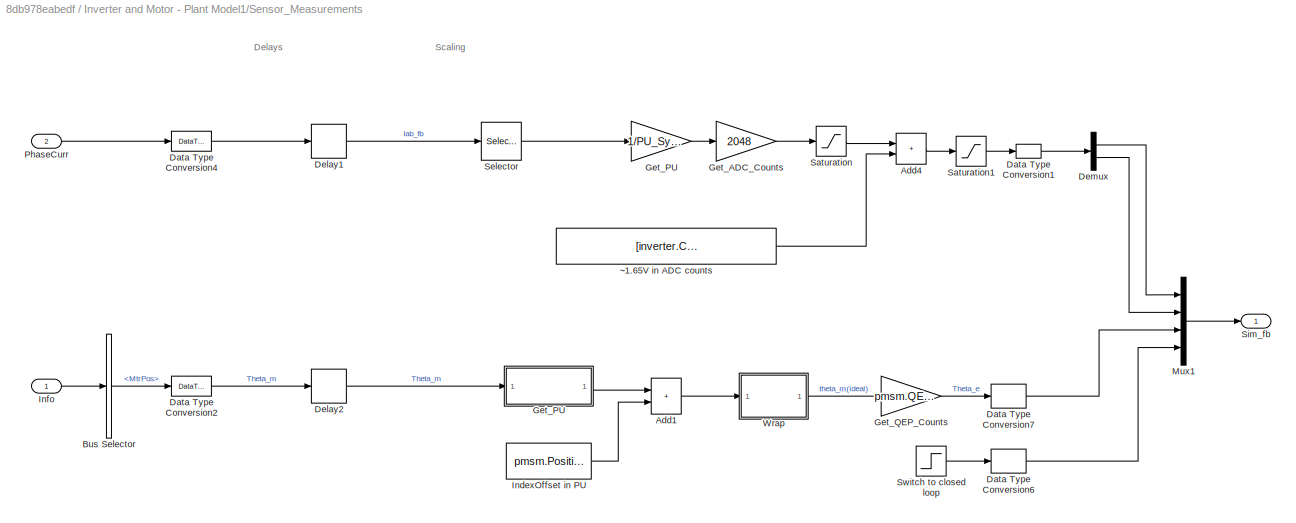
BLOCK [SubSystem] Inverter and Motor - Plant Model1/Sensor_Measurements
  Ports = [2, 1]
  RequestExecContextInheritance = off
BLOCK [Sum] Inverter and Motor - Plant Model1/Sensor_Measurements/Add1
  IconShape = rectangular
  Ports = [2, 1]
  RndMeth = Simplest
BLOCK [Sum] Inverter and Motor - Plant Model1/Sensor_Measurements/Add4
  IconShape = rectangular
  OutDataTypeStr = uint16
  Ports = [2, 1]
BLOCK [BusSelector] Inverter and Motor - Plant Model1/Sensor_Measurements/Bus Selector
  OutputSignals = MtrPos
  Ports = [1, 1]
BLOCK [DataTypeConversion] Inverter and Motor - Plant Model1/Sensor_Measurements/Data Type Conversion1
  OutDataTypeStr = uint16
  RndMeth = Floor
  SaturateOnIntegerOverflow = off
BLOCK [DataTypeConversion] Inverter and Motor - Plant Model1/Sensor_Measurements/Data Type Conversion2
  OutDataTypeStr = single
  RndMeth = Simplest
  SaturateOnIntegerOverflow = off
BLOCK [DataTypeConversion] Inverter and Motor - Plant Model1/Sensor_Measurements/Data Type Conversion4
  OutDataTypeStr = single
  RndMeth = Simplest
  SaturateOnIntegerOverflow = off
BLOCK [DataTypeConversion] Inverter and Motor - Plant Model1/Sensor_Measurements/Data Type Conversion6
  OutDataTypeStr = uint16
  RndMeth = Simplest
  SaturateOnIntegerOverflow = off
BLOCK [DataTypeConversion] Inverter and Motor - Plant Model1/Sensor_Measurements/Data Type Conversion7
  OutDataTypeStr = uint16
  RndMeth = Simplest
  SaturateOnIntegerOverflow = off
BLOCK [Delay] Inverter and Motor - Plant Model1/Sensor_Measurements/Delay1
  DelayLength = PI_params.delay_Currents
  InputPortMap = u0
  Ports = [1, 1]
BLOCK [Delay] Inverter and Motor - Plant Model1/Sensor_Measurements/Delay2
  DelayLength = PI_params.delay_Position
  InputPortMap = u0
  Ports = [1, 1]
BLOCK [Demux] Inverter and Motor - Plant Model1/Sensor_Measurements/Demux
  Outputs = 2
  Ports = [1, 2]
BLOCK [Gain] Inverter and Motor - Plant Model1/Sensor_Measurements/Get_ADC_Counts
  Gain = 2048
  OutDataTypeStr = Inherit: Same as input
  RndMeth = Simplest
BLOCK [Gain] Inverter and Motor - Plant Model1/Sensor_Measurements/Get_PU
  Gain = 1/PU_System.I_base
  RndMeth = Simplest
BLOCK [SubSystem] Inverter and Motor - Plant Model1/Sensor_Measurements/Get_PU 
  Ports = [1, 1]
  RequestExecContextInheritance = off
BLOCK [Constant] Inverter and Motor - Plant Model1/Sensor_Measurements/Get_PU /Constant2
  OutDataTypeStr = single
  SampleTime = -1
  Value = 2*pi
BLOCK [Gain] Inverter and Motor - Plant Model1/Sensor_Measurements/Get_PU /Get_PU
  Gain = 1/(2*pi)
  OutDataTypeStr = Inherit: Same as input
  RndMeth = Simplest
BLOCK [Math] Inverter and Motor - Plant Model1/Sensor_Measurements/Get_PU /Mod
  Operator = mod
  Ports = [2, 1]
BLOCK [Outport] Inverter and Motor - Plant Model1/Sensor_Measurements/Get_PU /PU
  VectorParamsAs1DForOutWhenUnconnected = off
BLOCK [Inport] Inverter and Motor - Plant Model1/Sensor_Measurements/Get_PU /rad
BLOCK [Gain] Inverter and Motor - Plant Model1/Sensor_Measurements/Get_QEP_Counts
  Gain = pmsm.QEPSlits*4
  OutDataTypeStr = uint16
  RndMeth = Simplest
BLOCK [Constant] Inverter and Motor - Plant Model1/Sensor_Measurements/IndexOffset in PU
  OutDataTypeStr = single
  SampleTime = -1
  Value = pmsm.PositionOffset
BLOCK [Inport] Inverter and Motor - Plant Model1/Sensor_Measurements/Info
BLOCK [Mux] Inverter and Motor - Plant Model1/Sensor_Measurements/Mux1
  DisplayOption = bar
  Ports = [4, 1]
BLOCK [Inport] Inverter and Motor - Plant Model1/Sensor_Measurements/PhaseCurr
  Port = 2
BLOCK [Saturate] Inverter and Motor - Plant Model1/Sensor_Measurements/Saturation
  LowerLimit = -2048
  UpperLimit = 2048
BLOCK [Saturate] Inverter and Motor - Plant Model1/Sensor_Measurements/Saturation1
  LowerLimit = 0
  UpperLimit = 4095
BLOCK [Selector] Inverter and Motor - Plant Model1/Sensor_Measurements/Selector
  IndexOptions = Index vector (dialog)
  Indices = [1 2]
  InputPortWidth = 3
  OutputSizes = 1
  Ports = [1, 1]
BLOCK [Outport] Inverter and Motor - Plant Model1/Sensor_Measurements/Sim_fb
  VectorParamsAs1DForOutWhenUnconnected = off
BLOCK [Step] Inverter and Motor - Plant Model1/Sensor_Measurements/Switch to closed loop 
  SampleTime = Ts_motor
  Time = 0.1
BLOCK [SubSystem] Inverter and Motor - Plant Model1/Sensor_Measurements/Wrap
  Ports = [1, 1]
  RequestExecContextInheritance = off
BLOCK [Constant] Inverter and Motor - Plant Model1/Sensor_Measurements/Wrap/Constant2
  OutDataTypeStr = single
  SampleTime = -1
BLOCK [Math] Inverter and Motor - Plant Model1/Sensor_Measurements/Wrap/Mod
  Operator = mod
  Ports = [2, 1]
BLOCK [Inport] Inverter and Motor - Plant Model1/Sensor_Measurements/Wrap/in
BLOCK [Outport] Inverter and Motor - Plant Model1/Sensor_Measurements/Wrap/out
  VectorParamsAs1DForOutWhenUnconnected = off
BLOCK [Constant] Inverter and Motor - Plant Model1/Sensor_Measurements/~1.65V in ADC counts
  OutDataTypeStr = uint16
  SampleTime = -1
  Value = [inverter.CtSensAOffset inverter.CtSensBOffset]
BLOCK [Reference] Inverter and Motor - Plant Model1/Surface Mount PMSM  REF=autolibpmsmexterior/Surface Mount PMSM
  Ports = [2, 3]
  SourceBlock = autolibpmsmexterior/Surface Mount PMSM
  SourceProductBaseCode = PW,MT,UV,VE,VP
  SourceType = Surface Mount PMSM
BLOCK [Terminator] Inverter and Motor - Plant Model1/Terminator
BLOCK [RateTransition] RT1
  Deterministic = off
  Integrity = off
  OutPortSampleTime = Ts
BLOCK [RateTransition] RT2
  Deterministic = off
  Integrity = off
  OutPortSampleTime = Ts
BLOCK [RateTransition] RT3
  Deterministic = off
  Integrity = off
  OutPortSampleTime = Ts_speed
BLOCK [RateTransition] RT4
  Deterministic = off
  Integrity = off
  OutPortSampleTime = Ts_speed
BLOCK [RateTransition] RT5
  Deterministic = off
  Integrity = off
  OutPortSampleTime = Ts
BLOCK [RateTransition] RT6
  Deterministic = off
  Integrity = off
  OutPortSampleTime = Ts
BLOCK [RateTransition] RT7
  Deterministic = off
  Integrity = off
  OutPortSampleTime = Ts_speed
BLOCK [RateTransition] RT8
  Deterministic = off
  Integrity = off
  OutPortSampleTime = Ts_speed
BLOCK [Scope] Scope
  Floating = off
  IOType = viewer
  NumInputPorts = 1
  Ports = []
  ScopeSpecificationString = Simulink.scopes.TimeScopeBlockCfg('CurrentConfiguration', extmgr.ConfigurationSet(extmgr.Configuration('Core','General UI',true),extmgr.Configuration('Core','Source UI',true),extmgr.Configuration('Sources','WiredSimulink',true,'DataLoggingVariableName','ScopeData1'),extmgr.Configuration('Visuals','Time Domain',true,'SerializedDisplays',{struct('MinYLimReal','-0.69012','MaxYLimReal','0.89441','YLab...<+2030ch>
BLOCK [Scope] Scope1
  Floating = off
  IOType = viewer
  NumInputPorts = 1
  Ports = []
  ScopeSpecificationString = Simulink.scopes.TimeScopeBlockCfg('CurrentConfiguration', extmgr.ConfigurationSet(extmgr.Configuration('Core','General UI',true),extmgr.Configuration('Core','Source UI',true),extmgr.Configuration('Sources','WiredSimulink',true,'DataLoggingVariableName','ScopeData1'),extmgr.Configuration('Visuals','Time Domain',true,'SerializedDisplays',{struct('MinYLimReal','-2.09084','MaxYLimReal','2.42939','YLab...<+2749ch>
BLOCK [SubSystem] Speed Control
  Ports = [2, 2]
  RTWSystemCode = Reusable function
  RequestExecContextInheritance = off
  SystemSampleTime = Ts_speed
  TreatAsAtomicUnit = on
BLOCK [Gain] Speed Control/Gain3
  Gain = pmsm.N_base
BLOCK [Reference] Speed Control/IIR Filter  REF=mcbcontrolslib/IIR Filter
  Ports = [1, 1]
  SourceBlock = mcbcontrolslib/IIR Filter
  SourceProductBaseCode = MT
  SourceType = IIR Filter
BLOCK [Constant] Speed Control/Id_ref
  OutDataTypeStr = dataType
  SampleTime = Ts_speed
  Value = 0
BLOCK [Outport] Speed Control/IdqRef_PU
  VectorParamsAs1DForOutWhenUnconnected = off
BLOCK [Mux] Speed Control/Mux1
  DisplayOption = bar
  Inputs = 2
  Ports = [2, 1]
BLOCK [SubSystem] Speed Control/PI_Controller_Speed
  Ports = [2, 1]
  RequestExecContextInheritance = off
BLOCK [Constant] Speed Control/PI_Controller_Speed/Constant
  OutDataTypeStr = boolean
BLOCK [Reference] Speed Control/PI_Controller_Speed/Discrete PI Controller with anti-windup & reset  REF=mcbcontrolslib/Discrete PI Controller 
with anti-windup & reset
  Ports = [5, 1]
  SourceBlock = mcbcontrolslib/Discrete PI Controller \nwith anti-windup & reset
  SourceProductBaseCode = MT
  SourceType = Discrete PI Controller with anti-windup and reset
BLOCK [Outport] Speed Control/PI_Controller_Speed/Iq_ref
  VectorParamsAs1DForOutWhenUnconnected = off
BLOCK [Constant] Speed Control/PI_Controller_Speed/Ki1
  NameLocation = top
  OutDataTypeStr = dataType
  SampleTime = -1
  Value = PI_params.Ki_speed*Ts_speed
BLOCK [Constant] Speed Control/PI_Controller_Speed/Ki2
  NameLocation = top
  OutDataTypeStr = dataType
  SampleTime = -1
  Value = 0
BLOCK [Constant] Speed Control/PI_Controller_Speed/Kp1
  NameLocation = top
  OutDataTypeStr = dataType
  SampleTime = -1
  Value = PI_params.Kp_speed
BLOCK [Logic] Speed Control/PI_Controller_Speed/Logical Operator
  AllPortsSameDT = off
  IconShape = distinctive
  Operator = NOT
  OutDataTypeStr = boolean
  Ports = [1, 1]
BLOCK [Inport] Speed Control/PI_Controller_Speed/N_fb
  Port = 2
BLOCK [Inport] Speed Control/PI_Controller_Speed/N_ref
BLOCK [Sum] Speed Control/PI_Controller_Speed/Sum
  Inputs = |+-
  OutDataTypeStr = Inherit: Same as first input
  Ports = [2, 1]
BLOCK [Inport] Speed Control/Speed_Meas_PU
  Port = 2
BLOCK [Inport] Speed Control/Speed_Ref_PU
BLOCK [Outport] Speed Control/Speef_fb
  Port = 2
BLOCK [SubSystem] Speed Control1
  Ports = [2, 3]
  RTWSystemCode = Reusable function
  RequestExecContextInheritance = off
  SystemSampleTime = Ts_speed
  TreatAsAtomicUnit = on
BLOCK [Gain] Speed Control1/Gain1
  Gain = pmsm.N_base
BLOCK [Gain] Speed Control1/Gain3
  Gain = pmsm.N_base
BLOCK [Reference] Speed Control1/IIR Filter  REF=mcbcontrolslib/IIR Filter
  Ports = [1, 1]
  SourceBlock = mcbcontrolslib/IIR Filter
  SourceProductBaseCode = MT
  SourceType = IIR Filter
BLOCK [Constant] Speed Control1/Id_ref
  OutDataTypeStr = dataType
  SampleTime = Ts_speed
  Value = 0
BLOCK [Outport] Speed Control1/IdqRef_PU
  VectorParamsAs1DForOutWhenUnconnected = off
BLOCK [Mux] Speed Control1/Mux1
  DisplayOption = bar
  Inputs = 2
  Ports = [2, 1]
BLOCK [SubSystem] Speed Control1/PI_Controller_Speed
  Ports = [2, 1]
  RequestExecContextInheritance = off
BLOCK [Constant] Speed Control1/PI_Controller_Speed/Constant
  OutDataTypeStr = boolean
BLOCK [Reference] Speed Control1/PI_Controller_Speed/Discrete PI Controller with anti-windup & reset  REF=mcbcontrolslib/Discrete PI Controller 
with anti-windup & reset
  Ports = [5, 1]
  SourceBlock = mcbcontrolslib/Discrete PI Controller \nwith anti-windup & reset
  SourceProductBaseCode = MT
  SourceType = Discrete PI Controller with anti-windup and reset
BLOCK [Outport] Speed Control1/PI_Controller_Speed/Iq_ref
  VectorParamsAs1DForOutWhenUnconnected = off
BLOCK [Constant] Speed Control1/PI_Controller_Speed/Ki1
  NameLocation = top
  OutDataTypeStr = dataType
  SampleTime = -1
  Value = PI_params.Ki_speed*Ts_speed
BLOCK [Constant] Speed Control1/PI_Controller_Speed/Ki2
  NameLocation = top
  OutDataTypeStr = dataType
  SampleTime = -1
  Value = 0
BLOCK [Constant] Speed Control1/PI_Controller_Speed/Kp1
  NameLocation = top
  OutDataTypeStr = dataType
  SampleTime = -1
  Value = PI_params.Kp_speed
BLOCK [Logic] Speed Control1/PI_Controller_Speed/Logical Operator
  AllPortsSameDT = off
  IconShape = distinctive
  Operator = NOT
  OutDataTypeStr = boolean
  Ports = [1, 1]
BLOCK [Inport] Speed Control1/PI_Controller_Speed/N_fb
  Port = 2
BLOCK [Inport] Speed Control1/PI_Controller_Speed/N_ref
BLOCK [Sum] Speed Control1/PI_Controller_Speed/Sum
  Inputs = |+-
  OutDataTypeStr = Inherit: Same as first input
  Ports = [2, 1]
BLOCK [Inport] Speed Control1/Speed_Meas_PU
  Port = 2
BLOCK [Inport] Speed Control1/Speed_Ref_PU
BLOCK [Outport] Speed Control1/speed_fb_net
  Port = 2
BLOCK [Outport] Speed Control1/speed_ref
  Port = 3
BLOCK [Scope] SpeedTracker
  Floating = off
  NumInputPorts = 3
  Ports = [3]
  ScopeSpecificationString = Simulink.scopes.TimeScopeBlockCfg('CurrentConfiguration', extmgr.ConfigurationSet(extmgr.Configuration('Core','General UI',true),extmgr.Configuration('Core','Source UI',true),extmgr.Configuration('Sources','WiredSimulink',true,'DataLoggingVariableName','ScopeData1'),extmgr.Configuration('Visuals','Time Domain',true,'SerializedDisplays',{struct('MinYLimReal','-263.497','MaxYLimReal','2618.93999','Y...<+1537ch>
ANNOTATION (root): <copyright redacted>
ANNOTATION (root): Explore more: 1. Edit motor & inverter parameters 2. Simulate this model
ANNOTATION (root): PMSM Field Oriented Control
ANNOTATION Current Control/Control_System/Closed Loop Control/Reinforcement Learning/Reward: reward = -(Q1*id_error^2 + Q2*Iq_error^2 + R*action^2) )
ANNOTATION Current Control/Input Scaling: Current Measurements
ANNOTATION Current Control/Input Scaling: Position & Speed Measurements
ANNOTATION Current Control/Input Scaling: QEP
ANNOTATION Current Control1/Control_System/Closed Loop Control/Reinforcement Learning/Reward: reward = -(Q1*id_error^2 + Q2*Iq_error^2 + R*action^2) )
ANNOTATION Current Control1/Input Scaling: Current Measurements
ANNOTATION Current Control1/Input Scaling: Position & Speed Measurements
ANNOTATION Current Control1/Input Scaling: QEP
ANNOTATION Inverter and Motor - Plant Model/Sensor_Measurements: Delays
ANNOTATION Inverter and Motor - Plant Model/Sensor_Measurements: Scaling
ANNOTATION Inverter and Motor - Plant Model1/Sensor_Measurements: Delays
ANNOTATION Inverter and Motor - Plant Model1/Sensor_Measurements: Scaling
LINE Current Control/Control_System/Closed Loop Control/Clarke Transform:1 -> Current Control/Control_System/Closed Loop Control/Park Transform:1
LINE Current Control/Control_System/Closed Loop Control/Clarke Transform:2 -> Current Control/Control_System/Closed Loop Control/Park Transform:2
LINE Current Control/Control_System/Closed Loop Control/Data Type Conversion1:1 -> Current Control/Control_System/Closed Loop Control/Inverse Park Transform:4
LINE Current Control/Control_System/Closed Loop Control/Data Type Conversion:1 -> Current Control/Control_System/Closed Loop Control/Inverse Park Transform:3
LINE Current Control/Control_System/Closed Loop Control/Demux1:1 -> Current Control/Control_System/Closed Loop Control/Reinforcement Learning:3
LINE Current Control/Control_System/Closed Loop Control/Demux1:2 -> Current Control/Control_System/Closed Loop Control/Reinforcement Learning:4
LINE Current Control/Control_System/Closed Loop Control/Demux2:1 -> Current Control/Control_System/Closed Loop Control/Inverse Park Transform:1
LINE Current Control/Control_System/Closed Loop Control/Demux2:2 -> Current Control/Control_System/Closed Loop Control/Inverse Park Transform:2
LINE Current Control/Control_System/Closed Loop Control/Demux:1 -> Current Control/Control_System/Closed Loop Control/Clarke Transform:1
LINE Current Control/Control_System/Closed Loop Control/Demux:2 -> Current Control/Control_System/Closed Loop Control/Clarke Transform:2
LINE Current Control/Control_System/Closed Loop Control/From1:1 -> Current Control/Control_System/Closed Loop Control/Data Type Conversion1:1
LINE Current Control/Control_System/Closed Loop Control/From:1 -> Current Control/Control_System/Closed Loop Control/Data Type Conversion:1
LINE Current Control/Control_System/Closed Loop Control/Iab_meas_PU:1 -> Current Control/Control_System/Closed Loop Control/Demux:1
LINE Current Control/Control_System/Closed Loop Control/Idq_ref_PU:1 -> Current Control/Control_System/Closed Loop Control/Demux1:1
LINE Current Control/Control_System/Closed Loop Control/Inverse Park Transform:1 -> Current Control/Control_System/Closed Loop Control/Space Vector Generator:1
LINE Current Control/Control_System/Closed Loop Control/Inverse Park Transform:2 -> Current Control/Control_System/Closed Loop Control/Space Vector Generator:2
LINE Current Control/Control_System/Closed Loop Control/Mux1:1 -> Current Control/Control_System/Closed Loop Control/Vabc in PU:1
LINE Current Control/Control_System/Closed Loop Control/Park Transform:1 -> Current Control/Control_System/Closed Loop Control/Reinforcement Learning:1
LINE Current Control/Control_System/Closed Loop Control/Park Transform:2 -> Current Control/Control_System/Closed Loop Control/Reinforcement Learning:2
LINE Current Control/Control_System/Closed Loop Control/Pos_PU:1 -> Current Control/Control_System/Closed Loop Control/Sine-Cosine Lookup:1
LINE Current Control/Control_System/Closed Loop Control/Reinforcement Learning/Data Type Conversion:1 -> Current Control/Control_System/Closed Loop Control/Reinforcement Learning/action:1
NET Current Control/Control_System/Closed Loop Control/Reinforcement Learning/IIR Filter1:1 -> Current Control/Control_System/Closed Loop Control/Reinforcement Learning/Observations:2, Current Control/Control_System/Closed Loop Control/Reinforcement Learning/Reward:2
NET Current Control/Control_System/Closed Loop Control/Reinforcement Learning/IIR Filter:1 -> Current Control/Control_System/Closed Loop Control/Reinforcement Learning/Observations:1, Current Control/Control_System/Closed Loop Control/Reinforcement Learning/Reward:1
NET Current Control/Control_System/Closed Loop Control/Reinforcement Learning/Mux:1 -> Current Control/Control_System/Closed Loop Control/Reinforcement Learning/Data Type Conversion:1, Current Control/Control_System/Closed Loop Control/Reinforcement Learning/Reward:3
LINE Current Control/Control_System/Closed Loop Control/Reinforcement Learning/Observations/Discrete Derivative1:1 -> Current Control/Control_System/Closed Loop Control/Reinforcement Learning/Observations/Gain1:1
LINE Current Control/Control_System/Closed Loop Control/Reinforcement Learning/Observations/Discrete Derivative:1 -> Current Control/Control_System/Closed Loop Control/Reinforcement Learning/Observations/Gain:1
LINE Current Control/Control_System/Closed Loop Control/Reinforcement Learning/Observations/Discrete-Time Integrator1:1 -> Current Control/Control_System/Closed Loop Control/Reinforcement Learning/Observations/Mux1:6
LINE Current Control/Control_System/Closed Loop Control/Reinforcement Learning/Observations/Discrete-Time Integrator:1 -> Current Control/Control_System/Closed Loop Control/Reinforcement Learning/Observations/Mux1:5
LINE Current Control/Control_System/Closed Loop Control/Reinforcement Learning/Observations/Gain1:1 -> Current Control/Control_System/Closed Loop Control/Reinforcement Learning/Observations/Mux1:4
LINE Current Control/Control_System/Closed Loop Control/Reinforcement Learning/Observations/Gain2:1 -> Current Control/Control_System/Closed Loop Control/Reinforcement Learning/Observations/Mux1:1
LINE Current Control/Control_System/Closed Loop Control/Reinforcement Learning/Observations/Gain3:1 -> Current Control/Control_System/Closed Loop Control/Reinforcement Learning/Observations/Mux1:2
LINE Current Control/Control_System/Closed Loop Control/Reinforcement Learning/Observations/Gain:1 -> Current Control/Control_System/Closed Loop Control/Reinforcement Learning/Observations/Mux1:3
LINE Current Control/Control_System/Closed Loop Control/Reinforcement Learning/Observations/Mux1:1 -> Current Control/Control_System/Closed Loop Control/Reinforcement Learning/Observations/observations:1
NET Current Control/Control_System/Closed Loop Control/Reinforcement Learning/Observations/id error:1 -> Current Control/Control_System/Closed Loop Control/Reinforcement Learning/Observations/Discrete Derivative:1, Current Control/Control_System/Closed Loop Control/Reinforcement Learning/Observations/Discrete-Time Integrator:1, Current Control/Control_System/Closed Loop Control/Reinforcement Learning/Observations/Gain2:1
NET Current Control/Control_System/Closed Loop Control/Reinforcement Learning/Observations/iq error:1 -> Current Control/Control_System/Closed Loop Control/Reinforcement Learning/Observations/Discrete Derivative1:1, Current Control/Control_System/Closed Loop Control/Reinforcement Learning/Observations/Discrete-Time Integrator1:1, Current Control/Control_System/Closed Loop Control/Reinforcement Learning/Observations/Gain3:1
NET Current Control/Control_System/Closed Loop Control/Reinforcement Learning/Observations:1 -> Current Control/Control_System/Closed Loop Control/Reinforcement Learning/tree_d:1, Current Control/Control_System/Closed Loop Control/Reinforcement Learning/tree_q:1
LINE Current Control/Control_System/Closed Loop Control/Reinforcement Learning/Reward/Add1:1 -> Current Control/Control_System/Closed Loop Control/Reinforcement Learning/Reward/reward:1
LINE Current Control/Control_System/Closed Loop Control/Reinforcement Learning/Reward/Demux:1 -> Current Control/Control_System/Closed Loop Control/Reinforcement Learning/Reward/Square:1
LINE Current Control/Control_System/Closed Loop Control/Reinforcement Learning/Reward/Demux:2 -> Current Control/Control_System/Closed Loop Control/Reinforcement Learning/Reward/Square3:1
NET Current Control/Control_System/Closed Loop Control/Reinforcement Learning/Reward/Gain1:1 -> Current Control/Control_System/Closed Loop Control/Reinforcement Learning/Reward/Add1:3, Current Control/Control_System/Closed Loop Control/Reinforcement Learning/Reward/Scope:3
NET Current Control/Control_System/Closed Loop Control/Reinforcement Learning/Reward/Gain3:1 -> Current Control/Control_System/Closed Loop Control/Reinforcement Learning/Reward/Add1:2, Current Control/Control_System/Closed Loop Control/Reinforcement Learning/Reward/Scope:2
NET Current Control/Control_System/Closed Loop Control/Reinforcement Learning/Reward/Gain5:1 -> Current Control/Control_System/Closed Loop Control/Reinforcement Learning/Reward/Add1:4, Current Control/Control_System/Closed Loop Control/Reinforcement Learning/Reward/Scope:4
NET Current Control/Control_System/Closed Loop Control/Reinforcement Learning/Reward/Gain:1 -> Current Control/Control_System/Closed Loop Control/Reinforcement Learning/Reward/Add1:1, Current Control/Control_System/Closed Loop Control/Reinforcement Learning/Reward/Scope:1
LINE Current Control/Control_System/Closed Loop Control/Reinforcement Learning/Reward/Square1:1 -> Current Control/Control_System/Closed Loop Control/Reinforcement Learning/Reward/Gain:1
LINE Current Control/Control_System/Closed Loop Control/Reinforcement Learning/Reward/Square2:1 -> Current Control/Control_System/Closed Loop Control/Reinforcement Learning/Reward/Gain3:1
LINE Current Control/Control_System/Closed Loop Control/Reinforcement Learning/Reward/Square3:1 -> Current Control/Control_System/Closed Loop Control/Reinforcement Learning/Reward/Gain5:1
LINE Current Control/Control_System/Closed Loop Control/Reinforcement Learning/Reward/Square:1 -> Current Control/Control_System/Closed Loop Control/Reinforcement Learning/Reward/Gain1:1
LINE Current Control/Control_System/Closed Loop Control/Reinforcement Learning/Reward/Unit Delay2:1 -> Current Control/Control_System/Closed Loop Control/Reinforcement Learning/Reward/Demux:1
LINE Current Control/Control_System/Closed Loop Control/Reinforcement Learning/Reward/action:1 -> Current Control/Control_System/Closed Loop Control/Reinforcement Learning/Reward/Unit Delay2:1
NET Current Control/Control_System/Closed Loop Control/Reinforcement Learning/Reward/id error:1 -> Current Control/Control_System/Closed Loop Control/Reinforcement Learning/Reward/Scope1:1, Current Control/Control_System/Closed Loop Control/Reinforcement Learning/Reward/Square1:1
NET Current Control/Control_System/Closed Loop Control/Reinforcement Learning/Reward/iq error:1 -> Current Control/Control_System/Closed Loop Control/Reinforcement Learning/Reward/Scope1:2, Current Control/Control_System/Closed Loop Control/Reinforcement Learning/Reward/Square2:1
LINE Current Control/Control_System/Closed Loop Control/Reinforcement Learning/Reward:1 -> Current Control/Control_System/Closed Loop Control/Reinforcement Learning/To Workspace1:1
LINE Current Control/Control_System/Closed Loop Control/Reinforcement Learning/Saturation1:1 -> Current Control/Control_System/Closed Loop Control/Reinforcement Learning/Mux:2
LINE Current Control/Control_System/Closed Loop Control/Reinforcement Learning/Saturation:1 -> Current Control/Control_System/Closed Loop Control/Reinforcement Learning/Mux:1
LINE Current Control/Control_System/Closed Loop Control/Reinforcement Learning/Sum1:1 -> Current Control/Control_System/Closed Loop Control/Reinforcement Learning/IIR Filter1:1
LINE Current Control/Control_System/Closed Loop Control/Reinforcement Learning/Sum:1 -> Current Control/Control_System/Closed Loop Control/Reinforcement Learning/IIR Filter:1
LINE Current Control/Control_System/Closed Loop Control/Reinforcement Learning/id ref:1 -> Current Control/Control_System/Closed Loop Control/Reinforcement Learning/Sum:1
LINE Current Control/Control_System/Closed Loop Control/Reinforcement Learning/id:1 -> Current Control/Control_System/Closed Loop Control/Reinforcement Learning/Sum:2
LINE Current Control/Control_System/Closed Loop Control/Reinforcement Learning/iq ref:1 -> Current Control/Control_System/Closed Loop Control/Reinforcement Learning/Sum1:1
LINE Current Control/Control_System/Closed Loop Control/Reinforcement Learning/iq:1 -> Current Control/Control_System/Closed Loop Control/Reinforcement Learning/Sum1:2
LINE Current Control/Control_System/Closed Loop Control/Reinforcement Learning/tree_d:1 -> Current Control/Control_System/Closed Loop Control/Reinforcement Learning/Saturation:1
LINE Current Control/Control_System/Closed Loop Control/Reinforcement Learning/tree_q:1 -> Current Control/Control_System/Closed Loop Control/Reinforcement Learning/Saturation1:1
LINE Current Control/Control_System/Closed Loop Control/Reinforcement Learning:1 -> Current Control/Control_System/Closed Loop Control/Demux2:1
NET Current Control/Control_System/Closed Loop Control/Sine-Cosine Lookup:1 -> Current Control/Control_System/Closed Loop Control/Goto:1, Current Control/Control_System/Closed Loop Control/Park Transform:3
NET Current Control/Control_System/Closed Loop Control/Sine-Cosine Lookup:2 -> Current Control/Control_System/Closed Loop Control/Goto1:1, Current Control/Control_System/Closed Loop Control/Park Transform:4
LINE Current Control/Control_System/Closed Loop Control/Space Vector Generator:1 -> Current Control/Control_System/Closed Loop Control/Mux1:1
LINE Current Control/Control_System/Closed Loop Control/Space Vector Generator:2 -> Current Control/Control_System/Closed Loop Control/Mux1:2
LINE Current Control/Control_System/Closed Loop Control/Space Vector Generator:3 -> Current Control/Control_System/Closed Loop Control/Mux1:3
LINE Current Control/Control_System/Closed Loop Control:1 -> Current Control/Control_System/Duty_Cycles:1
LINE Current Control/Control_System/Iab_meas_PU:1 -> Current Control/Control_System/Closed Loop Control:1
LINE Current Control/Control_System/Idq_ref_PU:1 -> Current Control/Control_System/Closed Loop Control:3
LINE Current Control/Control_System/Pos_PU:1 -> Current Control/Control_System/Closed Loop Control:2
LINE Current Control/Control_System:1 -> Current Control/Duty Cycles:1
LINE Current Control/Demux1:1 -> Current Control/Input Scaling:1
LINE Current Control/Demux1:2 -> Current Control/Input Scaling:2
LINE Current Control/Demux1:3 -> Current Control/Input Scaling:3
LINE Current Control/Demux1:4 -> Current Control/Input Scaling:4
LINE Current Control/Feedbacks_sim:1 -> Current Control/Demux1:1
LINE Current Control/Idq_ref_PU:1 -> Current Control/Control_System:3
LINE Current Control/Input Scaling/ Calculate Position and Speed/IIR Filter:1 -> Current Control/Input Scaling/ Calculate Position and Speed/speed:1
LINE Current Control/Input Scaling/ Calculate Position and Speed/Offset:1 -> Current Control/Input Scaling/ Calculate Position and Speed/fixed-point:2
LINE Current Control/Input Scaling/ Calculate Position and Speed/QEP_Index_Latch:1 -> Current Control/Input Scaling/ Calculate Position and Speed/Quadrature Decoder:2
LINE Current Control/Input Scaling/ Calculate Position and Speed/QEP_Position_Count:1 -> Current Control/Input Scaling/ Calculate Position and Speed/Quadrature Decoder:1
NET Current Control/Input Scaling/ Calculate Position and Speed/Quadrature Decoder:1 -> Current Control/Input Scaling/ Calculate Position and Speed/Speed Measurement:1, Current Control/Input Scaling/ Calculate Position and Speed/fixed-point:1
LINE Current Control/Input Scaling/ Calculate Position and Speed/Speed Measurement:1 -> Current Control/Input Scaling/ Calculate Position and Speed/IIR Filter:1
LINE Current Control/Input Scaling/ Calculate Position and Speed/fixed-point/Constant1:1 -> Current Control/Input Scaling/ Calculate Position and Speed/fixed-point/Switch:1
LINE Current Control/Input Scaling/ Calculate Position and Speed/fixed-point/Constant:1 -> Current Control/Input Scaling/ Calculate Position and Speed/fixed-point/Switch:2
LINE Current Control/Input Scaling/ Calculate Position and Speed/fixed-point/Data Type Conversion1:1 -> Current Control/Input Scaling/ Calculate Position and Speed/fixed-point/Sum1:2
NET Current Control/Input Scaling/ Calculate Position and Speed/fixed-point/Data Type Conversion2:1 -> Current Control/Input Scaling/ Calculate Position and Speed/fixed-point/Data Type Duplicate:2, Current Control/Input Scaling/ Calculate Position and Speed/fixed-point/ϴe:1
LINE Current Control/Input Scaling/ Calculate Position and Speed/fixed-point/Data Type Conversion4:1 -> Current Control/Input Scaling/ Calculate Position and Speed/fixed-point/Sum1:1
LINE Current Control/Input Scaling/ Calculate Position and Speed/fixed-point/Number of pole pairs:1 -> Current Control/Input Scaling/ Calculate Position and Speed/fixed-point/Data Type Conversion2:1
LINE Current Control/Input Scaling/ Calculate Position and Speed/fixed-point/Offset:1 -> Current Control/Input Scaling/ Calculate Position and Speed/fixed-point/Switch:3
LINE Current Control/Input Scaling/ Calculate Position and Speed/fixed-point/Sum1:1 -> Current Control/Input Scaling/ Calculate Position and Speed/fixed-point/Number of pole pairs:1
LINE Current Control/Input Scaling/ Calculate Position and Speed/fixed-point/Switch:1 -> Current Control/Input Scaling/ Calculate Position and Speed/fixed-point/Data Type Conversion1:1
NET Current Control/Input Scaling/ Calculate Position and Speed/fixed-point/ϴm:1 -> Current Control/Input Scaling/ Calculate Position and Speed/fixed-point/Data Type Conversion4:1, Current Control/Input Scaling/ Calculate Position and Speed/fixed-point/Data Type Duplicate:1
LINE Current Control/Input Scaling/ Calculate Position and Speed/fixed-point:1 -> Current Control/Input Scaling/ Calculate Position and Speed/Theta_e:1
LINE Current Control/Input Scaling/ Calculate Position and Speed:1 -> Current Control/Input Scaling/Pos_PU:1
LINE Current Control/Input Scaling/ Calculate Position and Speed:2 -> Current Control/Input Scaling/speed_PU:1
LINE Current Control/Input Scaling/Calculate Phase Currents/Add:1 -> Current Control/Input Scaling/Calculate Phase Currents/Q17 per unit conversion:1
LINE Current Control/Input Scaling/Calculate Phase Currents/Constant1:1 -> Current Control/Input Scaling/Calculate Phase Currents/Mux1:2
LINE Current Control/Input Scaling/Calculate Phase Currents/Constant:1 -> Current Control/Input Scaling/Calculate Phase Currents/Mux1:1
LINE Current Control/Input Scaling/Calculate Phase Currents/Data Type Conversion1:1 -> Current Control/Input Scaling/Calculate Phase Currents/Iab_meas_PU:1
LINE Current Control/Input Scaling/Calculate Phase Currents/Data Type Conversion3:1 -> Current Control/Input Scaling/Calculate Phase Currents/Data Type Conversion1:1
LINE Current Control/Input Scaling/Calculate Phase Currents/Data Type Conversion:1 -> Current Control/Input Scaling/Calculate Phase Currents/Add:2
LINE Current Control/Input Scaling/Calculate Phase Currents/Ia_ADC:1 -> Current Control/Input Scaling/Calculate Phase Currents/Mux:1
LINE Current Control/Input Scaling/Calculate Phase Currents/Ib_ADC:1 -> Current Control/Input Scaling/Calculate Phase Currents/Mux:2
LINE Current Control/Input Scaling/Calculate Phase Currents/Mux1:1 -> Current Control/Input Scaling/Calculate Phase Currents/Add:1
LINE Current Control/Input Scaling/Calculate Phase Currents/Mux:1 -> Current Control/Input Scaling/Calculate Phase Currents/Data Type Conversion:1
LINE Current Control/Input Scaling/Calculate Phase Currents/Q17 per unit conversion:1 -> Current Control/Input Scaling/Calculate Phase Currents/Data Type Conversion3:1
LINE Current Control/Input Scaling/Calculate Phase Currents:1 -> Current Control/Input Scaling/Iab_meas_PU:1
LINE Current Control/Input Scaling/Ia_ADC:1 -> Current Control/Input Scaling/Calculate Phase Currents:1
LINE Current Control/Input Scaling/Ib_ADC:1 -> Current Control/Input Scaling/Calculate Phase Currents:2
LINE Current Control/Input Scaling/IndexOffset:1 -> Current Control/Input Scaling/ Calculate Position and Speed:3
LINE Current Control/Input Scaling/QEP_Index_Latch:1 -> Current Control/Input Scaling/ Calculate Position and Speed:2
LINE Current Control/Input Scaling/QEP_Position_Count:1 -> Current Control/Input Scaling/ Calculate Position and Speed:1
LINE Current Control/Input Scaling:1 -> Current Control/Control_System:1
LINE Current Control/Input Scaling:2 -> Current Control/Control_System:2
LINE Current Control/Input Scaling:3 -> Current Control/Speed_fb:1
LINE Current Control1/Control_System/Closed Loop Control/Clarke Transform:1 -> Current Control1/Control_System/Closed Loop Control/Park Transform:1
LINE Current Control1/Control_System/Closed Loop Control/Clarke Transform:2 -> Current Control1/Control_System/Closed Loop Control/Park Transform:2
LINE Current Control1/Control_System/Closed Loop Control/Data Type Conversion1:1 -> Current Control1/Control_System/Closed Loop Control/Inverse Park Transform:4
LINE Current Control1/Control_System/Closed Loop Control/Data Type Conversion:1 -> Current Control1/Control_System/Closed Loop Control/Inverse Park Transform:3
LINE Current Control1/Control_System/Closed Loop Control/Demux1:1 -> Current Control1/Control_System/Closed Loop Control/Reinforcement Learning:3
LINE Current Control1/Control_System/Closed Loop Control/Demux1:2 -> Current Control1/Control_System/Closed Loop Control/Reinforcement Learning:4
LINE Current Control1/Control_System/Closed Loop Control/Demux2:1 -> Current Control1/Control_System/Closed Loop Control/Inverse Park Transform:1
LINE Current Control1/Control_System/Closed Loop Control/Demux2:2 -> Current Control1/Control_System/Closed Loop Control/Inverse Park Transform:2
LINE Current Control1/Control_System/Closed Loop Control/Demux:1 -> Current Control1/Control_System/Closed Loop Control/Clarke Transform:1
LINE Current Control1/Control_System/Closed Loop Control/Demux:2 -> Current Control1/Control_System/Closed Loop Control/Clarke Transform:2
LINE Current Control1/Control_System/Closed Loop Control/From1:1 -> Current Control1/Control_System/Closed Loop Control/Data Type Conversion1:1
LINE Current Control1/Control_System/Closed Loop Control/From:1 -> Current Control1/Control_System/Closed Loop Control/Data Type Conversion:1
LINE Current Control1/Control_System/Closed Loop Control/Iab_meas_PU:1 -> Current Control1/Control_System/Closed Loop Control/Demux:1
LINE Current Control1/Control_System/Closed Loop Control/Idq_ref_PU:1 -> Current Control1/Control_System/Closed Loop Control/Demux1:1
LINE Current Control1/Control_System/Closed Loop Control/Inverse Park Transform:1 -> Current Control1/Control_System/Closed Loop Control/Space Vector Generator:1
LINE Current Control1/Control_System/Closed Loop Control/Inverse Park Transform:2 -> Current Control1/Control_System/Closed Loop Control/Space Vector Generator:2
LINE Current Control1/Control_System/Closed Loop Control/Mux1:1 -> Current Control1/Control_System/Closed Loop Control/Vabc in PU:1
LINE Current Control1/Control_System/Closed Loop Control/Park Transform:1 -> Current Control1/Control_System/Closed Loop Control/Reinforcement Learning:1
LINE Current Control1/Control_System/Closed Loop Control/Park Transform:2 -> Current Control1/Control_System/Closed Loop Control/Reinforcement Learning:2
LINE Current Control1/Control_System/Closed Loop Control/Pos_PU:1 -> Current Control1/Control_System/Closed Loop Control/Sine-Cosine Lookup:1
LINE Current Control1/Control_System/Closed Loop Control/Reinforcement Learning/Constant:1 -> Current Control1/Control_System/Closed Loop Control/Reinforcement Learning/RL Agent:3
LINE Current Control1/Control_System/Closed Loop Control/Reinforcement Learning/Data Type Conversion:1 -> Current Control1/Control_System/Closed Loop Control/Reinforcement Learning/action:1
NET Current Control1/Control_System/Closed Loop Control/Reinforcement Learning/IIR Filter1:1 -> Current Control1/Control_System/Closed Loop Control/Reinforcement Learning/Observations:2, Current Control1/Control_System/Closed Loop Control/Reinforcement Learning/Reward:2
NET Current Control1/Control_System/Closed Loop Control/Reinforcement Learning/IIR Filter:1 -> Current Control1/Control_System/Closed Loop Control/Reinforcement Learning/Observations:1, Current Control1/Control_System/Closed Loop Control/Reinforcement Learning/Reward:1
LINE Current Control1/Control_System/Closed Loop Control/Reinforcement Learning/Observations/Discrete Derivative1:1 -> Current Control1/Control_System/Closed Loop Control/Reinforcement Learning/Observations/Gain1:1
LINE Current Control1/Control_System/Closed Loop Control/Reinforcement Learning/Observations/Discrete Derivative:1 -> Current Control1/Control_System/Closed Loop Control/Reinforcement Learning/Observations/Gain:1
LINE Current Control1/Control_System/Closed Loop Control/Reinforcement Learning/Observations/Discrete-Time Integrator1:1 -> Current Control1/Control_System/Closed Loop Control/Reinforcement Learning/Observations/Mux1:6
LINE Current Control1/Control_System/Closed Loop Control/Reinforcement Learning/Observations/Discrete-Time Integrator:1 -> Current Control1/Control_System/Closed Loop Control/Reinforcement Learning/Observations/Mux1:5
LINE Current Control1/Control_System/Closed Loop Control/Reinforcement Learning/Observations/Gain1:1 -> Current Control1/Control_System/Closed Loop Control/Reinforcement Learning/Observations/Mux1:4
LINE Current Control1/Control_System/Closed Loop Control/Reinforcement Learning/Observations/Gain2:1 -> Current Control1/Control_System/Closed Loop Control/Reinforcement Learning/Observations/Mux1:1
LINE Current Control1/Control_System/Closed Loop Control/Reinforcement Learning/Observations/Gain3:1 -> Current Control1/Control_System/Closed Loop Control/Reinforcement Learning/Observations/Mux1:2
LINE Current Control1/Control_System/Closed Loop Control/Reinforcement Learning/Observations/Gain:1 -> Current Control1/Control_System/Closed Loop Control/Reinforcement Learning/Observations/Mux1:3
LINE Current Control1/Control_System/Closed Loop Control/Reinforcement Learning/Observations/Mux1:1 -> Current Control1/Control_System/Closed Loop Control/Reinforcement Learning/Observations/observations:1
NET Current Control1/Control_System/Closed Loop Control/Reinforcement Learning/Observations/id error:1 -> Current Control1/Control_System/Closed Loop Control/Reinforcement Learning/Observations/Discrete Derivative:1, Current Control1/Control_System/Closed Loop Control/Reinforcement Learning/Observations/Discrete-Time Integrator:1, Current Control1/Control_System/Closed Loop Control/Reinforcement Learning/Observations/Gain2:1
NET Current Control1/Control_System/Closed Loop Control/Reinforcement Learning/Observations/iq error:1 -> Current Control1/Control_System/Closed Loop Control/Reinforcement Learning/Observations/Discrete Derivative1:1, Current Control1/Control_System/Closed Loop Control/Reinforcement Learning/Observations/Discrete-Time Integrator1:1, Current Control1/Control_System/Closed Loop Control/Reinforcement Learning/Observations/Gain3:1
LINE Current Control1/Control_System/Closed Loop Control/Reinforcement Learning/Observations:1 -> Current Control1/Control_System/Closed Loop Control/Reinforcement Learning/RL Agent:1
NET Current Control1/Control_System/Closed Loop Control/Reinforcement Learning/RL Agent:1 -> Current Control1/Control_System/Closed Loop Control/Reinforcement Learning/Data Type Conversion:1, Current Control1/Control_System/Closed Loop Control/Reinforcement Learning/Reward:3
LINE Current Control1/Control_System/Closed Loop Control/Reinforcement Learning/Reward/Add1:1 -> Current Control1/Control_System/Closed Loop Control/Reinforcement Learning/Reward/reward:1
LINE Current Control1/Control_System/Closed Loop Control/Reinforcement Learning/Reward/Demux:1 -> Current Control1/Control_System/Closed Loop Control/Reinforcement Learning/Reward/Square:1
LINE Current Control1/Control_System/Closed Loop Control/Reinforcement Learning/Reward/Demux:2 -> Current Control1/Control_System/Closed Loop Control/Reinforcement Learning/Reward/Square3:1
NET Current Control1/Control_System/Closed Loop Control/Reinforcement Learning/Reward/Gain1:1 -> Current Control1/Control_System/Closed Loop Control/Reinforcement Learning/Reward/Add1:3, Current Control1/Control_System/Closed Loop Control/Reinforcement Learning/Reward/Scope:3
NET Current Control1/Control_System/Closed Loop Control/Reinforcement Learning/Reward/Gain3:1 -> Current Control1/Control_System/Closed Loop Control/Reinforcement Learning/Reward/Add1:2, Current Control1/Control_System/Closed Loop Control/Reinforcement Learning/Reward/Scope:2
NET Current Control1/Control_System/Closed Loop Control/Reinforcement Learning/Reward/Gain5:1 -> Current Control1/Control_System/Closed Loop Control/Reinforcement Learning/Reward/Add1:4, Current Control1/Control_System/Closed Loop Control/Reinforcement Learning/Reward/Scope:4
NET Current Control1/Control_System/Closed Loop Control/Reinforcement Learning/Reward/Gain:1 -> Current Control1/Control_System/Closed Loop Control/Reinforcement Learning/Reward/Add1:1, Current Control1/Control_System/Closed Loop Control/Reinforcement Learning/Reward/Scope:1
LINE Current Control1/Control_System/Closed Loop Control/Reinforcement Learning/Reward/Square1:1 -> Current Control1/Control_System/Closed Loop Control/Reinforcement Learning/Reward/Gain:1
LINE Current Control1/Control_System/Closed Loop Control/Reinforcement Learning/Reward/Square2:1 -> Current Control1/Control_System/Closed Loop Control/Reinforcement Learning/Reward/Gain3:1
LINE Current Control1/Control_System/Closed Loop Control/Reinforcement Learning/Reward/Square3:1 -> Current Control1/Control_System/Closed Loop Control/Reinforcement Learning/Reward/Gain5:1
LINE Current Control1/Control_System/Closed Loop Control/Reinforcement Learning/Reward/Square:1 -> Current Control1/Control_System/Closed Loop Control/Reinforcement Learning/Reward/Gain1:1
LINE Current Control1/Control_System/Closed Loop Control/Reinforcement Learning/Reward/Unit Delay2:1 -> Current Control1/Control_System/Closed Loop Control/Reinforcement Learning/Reward/Demux:1
LINE Current Control1/Control_System/Closed Loop Control/Reinforcement Learning/Reward/action:1 -> Current Control1/Control_System/Closed Loop Control/Reinforcement Learning/Reward/Unit Delay2:1
NET Current Control1/Control_System/Closed Loop Control/Reinforcement Learning/Reward/id error:1 -> Current Control1/Control_System/Closed Loop Control/Reinforcement Learning/Reward/Scope1:1, Current Control1/Control_System/Closed Loop Control/Reinforcement Learning/Reward/Square1:1
NET Current Control1/Control_System/Closed Loop Control/Reinforcement Learning/Reward/iq error:1 -> Current Control1/Control_System/Closed Loop Control/Reinforcement Learning/Reward/Scope1:2, Current Control1/Control_System/Closed Loop Control/Reinforcement Learning/Reward/Square2:1
NET Current Control1/Control_System/Closed Loop Control/Reinforcement Learning/Reward:1 -> Current Control1/Control_System/Closed Loop Control/Reinforcement Learning/RL Agent:2, Current Control1/Control_System/Closed Loop Control/Reinforcement Learning/To Workspace1:1
LINE Current Control1/Control_System/Closed Loop Control/Reinforcement Learning/Sum1:1 -> Current Control1/Control_System/Closed Loop Control/Reinforcement Learning/IIR Filter1:1
LINE Current Control1/Control_System/Closed Loop Control/Reinforcement Learning/Sum:1 -> Current Control1/Control_System/Closed Loop Control/Reinforcement Learning/IIR Filter:1
LINE Current Control1/Control_System/Closed Loop Control/Reinforcement Learning/id ref:1 -> Current Control1/Control_System/Closed Loop Control/Reinforcement Learning/Sum:1
LINE Current Control1/Control_System/Closed Loop Control/Reinforcement Learning/id:1 -> Current Control1/Control_System/Closed Loop Control/Reinforcement Learning/Sum:2
LINE Current Control1/Control_System/Closed Loop Control/Reinforcement Learning/iq ref:1 -> Current Control1/Control_System/Closed Loop Control/Reinforcement Learning/Sum1:1
LINE Current Control1/Control_System/Closed Loop Control/Reinforcement Learning/iq:1 -> Current Control1/Control_System/Closed Loop Control/Reinforcement Learning/Sum1:2
LINE Current Control1/Control_System/Closed Loop Control/Reinforcement Learning:1 -> Current Control1/Control_System/Closed Loop Control/Demux2:1
NET Current Control1/Control_System/Closed Loop Control/Sine-Cosine Lookup:1 -> Current Control1/Control_System/Closed Loop Control/Goto:1, Current Control1/Control_System/Closed Loop Control/Park Transform:3
NET Current Control1/Control_System/Closed Loop Control/Sine-Cosine Lookup:2 -> Current Control1/Control_System/Closed Loop Control/Goto1:1, Current Control1/Control_System/Closed Loop Control/Park Transform:4
LINE Current Control1/Control_System/Closed Loop Control/Space Vector Generator:1 -> Current Control1/Control_System/Closed Loop Control/Mux1:1
LINE Current Control1/Control_System/Closed Loop Control/Space Vector Generator:2 -> Current Control1/Control_System/Closed Loop Control/Mux1:2
LINE Current Control1/Control_System/Closed Loop Control/Space Vector Generator:3 -> Current Control1/Control_System/Closed Loop Control/Mux1:3
LINE Current Control1/Control_System/Closed Loop Control:1 -> Current Control1/Control_System/Duty_Cycles:1
LINE Current Control1/Control_System/Iab_meas_PU:1 -> Current Control1/Control_System/Closed Loop Control:1
LINE Current Control1/Control_System/Idq_ref_PU:1 -> Current Control1/Control_System/Closed Loop Control:3
LINE Current Control1/Control_System/Pos_PU:1 -> Current Control1/Control_System/Closed Loop Control:2
LINE Current Control1/Control_System:1 -> Current Control1/Duty Cycles:1
LINE Current Control1/Demux1:1 -> Current Control1/Input Scaling:1
LINE Current Control1/Demux1:2 -> Current Control1/Input Scaling:2
LINE Current Control1/Demux1:3 -> Current Control1/Input Scaling:3
LINE Current Control1/Demux1:4 -> Current Control1/Input Scaling:4
LINE Current Control1/Feedbacks_sim:1 -> Current Control1/Demux1:1
LINE Current Control1/Idq_ref_PU:1 -> Current Control1/Control_System:3
LINE Current Control1/Input Scaling/ Calculate Position and Speed/IIR Filter:1 -> Current Control1/Input Scaling/ Calculate Position and Speed/speed:1
LINE Current Control1/Input Scaling/ Calculate Position and Speed/Offset:1 -> Current Control1/Input Scaling/ Calculate Position and Speed/fixed-point:2
LINE Current Control1/Input Scaling/ Calculate Position and Speed/QEP_Index_Latch:1 -> Current Control1/Input Scaling/ Calculate Position and Speed/Quadrature Decoder:2
LINE Current Control1/Input Scaling/ Calculate Position and Speed/QEP_Position_Count:1 -> Current Control1/Input Scaling/ Calculate Position and Speed/Quadrature Decoder:1
NET Current Control1/Input Scaling/ Calculate Position and Speed/Quadrature Decoder:1 -> Current Control1/Input Scaling/ Calculate Position and Speed/Speed Measurement:1, Current Control1/Input Scaling/ Calculate Position and Speed/fixed-point:1
LINE Current Control1/Input Scaling/ Calculate Position and Speed/Speed Measurement:1 -> Current Control1/Input Scaling/ Calculate Position and Speed/IIR Filter:1
LINE Current Control1/Input Scaling/ Calculate Position and Speed/fixed-point/Constant1:1 -> Current Control1/Input Scaling/ Calculate Position and Speed/fixed-point/Switch:1
LINE Current Control1/Input Scaling/ Calculate Position and Speed/fixed-point/Constant:1 -> Current Control1/Input Scaling/ Calculate Position and Speed/fixed-point/Switch:2
LINE Current Control1/Input Scaling/ Calculate Position and Speed/fixed-point/Data Type Conversion1:1 -> Current Control1/Input Scaling/ Calculate Position and Speed/fixed-point/Sum1:2
NET Current Control1/Input Scaling/ Calculate Position and Speed/fixed-point/Data Type Conversion2:1 -> Current Control1/Input Scaling/ Calculate Position and Speed/fixed-point/Data Type Duplicate:2, Current Control1/Input Scaling/ Calculate Position and Speed/fixed-point/ϴe:1
LINE Current Control1/Input Scaling/ Calculate Position and Speed/fixed-point/Data Type Conversion4:1 -> Current Control1/Input Scaling/ Calculate Position and Speed/fixed-point/Sum1:1
LINE Current Control1/Input Scaling/ Calculate Position and Speed/fixed-point/Number of pole pairs:1 -> Current Control1/Input Scaling/ Calculate Position and Speed/fixed-point/Data Type Conversion2:1
LINE Current Control1/Input Scaling/ Calculate Position and Speed/fixed-point/Offset:1 -> Current Control1/Input Scaling/ Calculate Position and Speed/fixed-point/Switch:3
LINE Current Control1/Input Scaling/ Calculate Position and Speed/fixed-point/Sum1:1 -> Current Control1/Input Scaling/ Calculate Position and Speed/fixed-point/Number of pole pairs:1
LINE Current Control1/Input Scaling/ Calculate Position and Speed/fixed-point/Switch:1 -> Current Control1/Input Scaling/ Calculate Position and Speed/fixed-point/Data Type Conversion1:1
NET Current Control1/Input Scaling/ Calculate Position and Speed/fixed-point/ϴm:1 -> Current Control1/Input Scaling/ Calculate Position and Speed/fixed-point/Data Type Conversion4:1, Current Control1/Input Scaling/ Calculate Position and Speed/fixed-point/Data Type Duplicate:1
LINE Current Control1/Input Scaling/ Calculate Position and Speed/fixed-point:1 -> Current Control1/Input Scaling/ Calculate Position and Speed/Theta_e:1
LINE Current Control1/Input Scaling/ Calculate Position and Speed:1 -> Current Control1/Input Scaling/Pos_PU:1
LINE Current Control1/Input Scaling/ Calculate Position and Speed:2 -> Current Control1/Input Scaling/speed_PU:1
LINE Current Control1/Input Scaling/Calculate Phase Currents/Add:1 -> Current Control1/Input Scaling/Calculate Phase Currents/Q17 per unit conversion:1
LINE Current Control1/Input Scaling/Calculate Phase Currents/Constant1:1 -> Current Control1/Input Scaling/Calculate Phase Currents/Mux1:2
LINE Current Control1/Input Scaling/Calculate Phase Currents/Constant:1 -> Current Control1/Input Scaling/Calculate Phase Currents/Mux1:1
LINE Current Control1/Input Scaling/Calculate Phase Currents/Data Type Conversion1:1 -> Current Control1/Input Scaling/Calculate Phase Currents/Iab_meas_PU:1
LINE Current Control1/Input Scaling/Calculate Phase Currents/Data Type Conversion3:1 -> Current Control1/Input Scaling/Calculate Phase Currents/Data Type Conversion1:1
LINE Current Control1/Input Scaling/Calculate Phase Currents/Data Type Conversion:1 -> Current Control1/Input Scaling/Calculate Phase Currents/Add:2
LINE Current Control1/Input Scaling/Calculate Phase Currents/Ia_ADC:1 -> Current Control1/Input Scaling/Calculate Phase Currents/Mux:1
LINE Current Control1/Input Scaling/Calculate Phase Currents/Ib_ADC:1 -> Current Control1/Input Scaling/Calculate Phase Currents/Mux:2
LINE Current Control1/Input Scaling/Calculate Phase Currents/Mux1:1 -> Current Control1/Input Scaling/Calculate Phase Currents/Add:1
LINE Current Control1/Input Scaling/Calculate Phase Currents/Mux:1 -> Current Control1/Input Scaling/Calculate Phase Currents/Data Type Conversion:1
LINE Current Control1/Input Scaling/Calculate Phase Currents/Q17 per unit conversion:1 -> Current Control1/Input Scaling/Calculate Phase Currents/Data Type Conversion3:1
LINE Current Control1/Input Scaling/Calculate Phase Currents:1 -> Current Control1/Input Scaling/Iab_meas_PU:1
LINE Current Control1/Input Scaling/Ia_ADC:1 -> Current Control1/Input Scaling/Calculate Phase Currents:1
LINE Current Control1/Input Scaling/Ib_ADC:1 -> Current Control1/Input Scaling/Calculate Phase Currents:2
LINE Current Control1/Input Scaling/IndexOffset:1 -> Current Control1/Input Scaling/ Calculate Position and Speed:3
LINE Current Control1/Input Scaling/QEP_Index_Latch:1 -> Current Control1/Input Scaling/ Calculate Position and Speed:2
LINE Current Control1/Input Scaling/QEP_Position_Count:1 -> Current Control1/Input Scaling/ Calculate Position and Speed:1
LINE Current Control1/Input Scaling:1 -> Current Control1/Control_System:1
LINE Current Control1/Input Scaling:2 -> Current Control1/Control_System:2
LINE Current Control1/Input Scaling:3 -> Current Control1/Speed_fb:1
LINE Current Control1:1 -> Inverter and Motor - Plant Model1:1
LINE Current Control1:2 -> RT8:1
LINE Current Control:1 -> Inverter and Motor - Plant Model:1
LINE Current Control:2 -> RT4:1
NET Data Type Conversion:1 -> RT3:1, RT7:1
LINE From Workspace:1 -> Data Type Conversion:1
LINE From1:1 -> RT2:1
LINE From2:1 -> RT6:1
LINE Inverter and Motor - Plant Model/Average Inverter/Average-Value Inverter:1 -> Inverter and Motor - Plant Model/Average Inverter/Vabc:1
LINE Inverter and Motor - Plant Model/Average Inverter/Constant2:1 -> Inverter and Motor - Plant Model/Average Inverter/Average-Value Inverter:2
LINE Inverter and Motor - Plant Model/Average Inverter/Data Type Conversion1:1 -> Inverter and Motor - Plant Model/Average Inverter/Rate Transition3:1
LINE Inverter and Motor - Plant Model/Average Inverter/Duty_abc:1 -> Inverter and Motor - Plant Model/Average Inverter/Data Type Conversion1:1
LINE Inverter and Motor - Plant Model/Average Inverter/Rate Transition3:1 -> Inverter and Motor - Plant Model/Average Inverter/Average-Value Inverter:1
LINE Inverter and Motor - Plant Model/Average Inverter:1 -> Inverter and Motor - Plant Model/Rate Transition:1
LINE Inverter and Motor - Plant Model/Duty_Cycles:1 -> Inverter and Motor - Plant Model/Average Inverter:1
LINE Inverter and Motor - Plant Model/Load_Profile (Torque)/Data Type Conversion:1 -> Inverter and Motor - Plant Model/Load_Profile (Torque)/IIR Filter:1
LINE Inverter and Motor - Plant Model/Load_Profile (Torque)/IIR Filter:1 -> Inverter and Motor - Plant Model/Load_Profile (Torque)/Load_Trq:1
LINE Inverter and Motor - Plant Model/Load_Profile (Torque)/T_load:1 -> Inverter and Motor - Plant Model/Load_Profile (Torque)/Data Type Conversion:1
LINE Inverter and Motor - Plant Model/Load_Profile (Torque):1 -> Inverter and Motor - Plant Model/Rate Transition1:1
LINE Inverter and Motor - Plant Model/RT1:1 -> Inverter and Motor - Plant Model/Sensor_Measurements:2
LINE Inverter and Motor - Plant Model/RT3:1 -> Inverter and Motor - Plant Model/Sensor_Measurements:1
LINE Inverter and Motor - Plant Model/Rate Transition1:1 -> Inverter and Motor - Plant Model/Surface Mount PMSM:1
LINE Inverter and Motor - Plant Model/Rate Transition:1 -> Inverter and Motor - Plant Model/Surface Mount PMSM:2
LINE Inverter and Motor - Plant Model/Sensor_Measurements/Add1:1 -> Inverter and Motor - Plant Model/Sensor_Measurements/Wrap:1
LINE Inverter and Motor - Plant Model/Sensor_Measurements/Add4:1 -> Inverter and Motor - Plant Model/Sensor_Measurements/Saturation1:1
LINE Inverter and Motor - Plant Model/Sensor_Measurements/Bus Selector:1 -> Inverter and Motor - Plant Model/Sensor_Measurements/Data Type Conversion2:1
LINE Inverter and Motor - Plant Model/Sensor_Measurements/Data Type Conversion1:1 -> Inverter and Motor - Plant Model/Sensor_Measurements/Demux:1
LINE Inverter and Motor - Plant Model/Sensor_Measurements/Data Type Conversion2:1 -> Inverter and Motor - Plant Model/Sensor_Measurements/Delay2:1
LINE Inverter and Motor - Plant Model/Sensor_Measurements/Data Type Conversion4:1 -> Inverter and Motor - Plant Model/Sensor_Measurements/Delay1:1
LINE Inverter and Motor - Plant Model/Sensor_Measurements/Data Type Conversion6:1 -> Inverter and Motor - Plant Model/Sensor_Measurements/Mux1:4
LINE Inverter and Motor - Plant Model/Sensor_Measurements/Data Type Conversion7:1 -> Inverter and Motor - Plant Model/Sensor_Measurements/Mux1:3
LINE Inverter and Motor - Plant Model/Sensor_Measurements/Delay1:1 -> Inverter and Motor - Plant Model/Sensor_Measurements/Selector:1
LINE Inverter and Motor - Plant Model/Sensor_Measurements/Delay2:1 -> Inverter and Motor - Plant Model/Sensor_Measurements/Get_PU :1
LINE Inverter and Motor - Plant Model/Sensor_Measurements/Demux:1 -> Inverter and Motor - Plant Model/Sensor_Measurements/Mux1:1
LINE Inverter and Motor - Plant Model/Sensor_Measurements/Demux:2 -> Inverter and Motor - Plant Model/Sensor_Measurements/Mux1:2
LINE Inverter and Motor - Plant Model/Sensor_Measurements/Get_ADC_Counts:1 -> Inverter and Motor - Plant Model/Sensor_Measurements/Saturation:1
LINE Inverter and Motor - Plant Model/Sensor_Measurements/Get_PU /Constant2:1 -> Inverter and Motor - Plant Model/Sensor_Measurements/Get_PU /Mod:2
LINE Inverter and Motor - Plant Model/Sensor_Measurements/Get_PU /Get_PU:1 -> Inverter and Motor - Plant Model/Sensor_Measurements/Get_PU /PU:1
LINE Inverter and Motor - Plant Model/Sensor_Measurements/Get_PU /Mod:1 -> Inverter and Motor - Plant Model/Sensor_Measurements/Get_PU /Get_PU:1
LINE Inverter and Motor - Plant Model/Sensor_Measurements/Get_PU /rad:1 -> Inverter and Motor - Plant Model/Sensor_Measurements/Get_PU /Mod:1
LINE Inverter and Motor - Plant Model/Sensor_Measurements/Get_PU :1 -> Inverter and Motor - Plant Model/Sensor_Measurements/Add1:1
LINE Inverter and Motor - Plant Model/Sensor_Measurements/Get_PU:1 -> Inverter and Motor - Plant Model/Sensor_Measurements/Get_ADC_Counts:1
LINE Inverter and Motor - Plant Model/Sensor_Measurements/Get_QEP_Counts:1 -> Inverter and Motor - Plant Model/Sensor_Measurements/Data Type Conversion7:1
LINE Inverter and Motor - Plant Model/Sensor_Measurements/IndexOffset in PU:1 -> Inverter and Motor - Plant Model/Sensor_Measurements/Add1:2
LINE Inverter and Motor - Plant Model/Sensor_Measurements/Info:1 -> Inverter and Motor - Plant Model/Sensor_Measurements/Bus Selector:1
LINE Inverter and Motor - Plant Model/Sensor_Measurements/Mux1:1 -> Inverter and Motor - Plant Model/Sensor_Measurements/Sim_fb:1
LINE Inverter and Motor - Plant Model/Sensor_Measurements/PhaseCurr:1 -> Inverter and Motor - Plant Model/Sensor_Measurements/Data Type Conversion4:1
LINE Inverter and Motor - Plant Model/Sensor_Measurements/Saturation1:1 -> Inverter and Motor - Plant Model/Sensor_Measurements/Data Type Conversion1:1
LINE Inverter and Motor - Plant Model/Sensor_Measurements/Saturation:1 -> Inverter and Motor - Plant Model/Sensor_Measurements/Add4:1
LINE Inverter and Motor - Plant Model/Sensor_Measurements/Selector:1 -> Inverter and Motor - Plant Model/Sensor_Measurements/Get_PU:1
LINE Inverter and Motor - Plant Model/Sensor_Measurements/Switch to closed loop :1 -> Inverter and Motor - Plant Model/Sensor_Measurements/Data Type Conversion6:1
LINE Inverter and Motor - Plant Model/Sensor_Measurements/Wrap/Constant2:1 -> Inverter and Motor - Plant Model/Sensor_Measurements/Wrap/Mod:2
LINE Inverter and Motor - Plant Model/Sensor_Measurements/Wrap/Mod:1 -> Inverter and Motor - Plant Model/Sensor_Measurements/Wrap/out:1
LINE Inverter and Motor - Plant Model/Sensor_Measurements/Wrap/in:1 -> Inverter and Motor - Plant Model/Sensor_Measurements/Wrap/Mod:1
LINE Inverter and Motor - Plant Model/Sensor_Measurements/Wrap:1 -> Inverter and Motor - Plant Model/Sensor_Measurements/Get_QEP_Counts:1
LINE Inverter and Motor - Plant Model/Sensor_Measurements/~1.65V in ADC counts:1 -> Inverter and Motor - Plant Model/Sensor_Measurements/Add4:2
LINE Inverter and Motor - Plant Model/Sensor_Measurements:1 -> Inverter and Motor - Plant Model/Feedbacks_sim:1
LINE Inverter and Motor - Plant Model/Surface Mount PMSM:1 -> Inverter and Motor - Plant Model/RT3:1
LINE Inverter and Motor - Plant Model/Surface Mount PMSM:2 -> Inverter and Motor - Plant Model/RT1:1
LINE Inverter and Motor - Plant Model/Surface Mount PMSM:3 -> Inverter and Motor - Plant Model/Terminator:1
LINE Inverter and Motor - Plant Model1/Average Inverter/Average-Value Inverter:1 -> Inverter and Motor - Plant Model1/Average Inverter/Vabc:1
LINE Inverter and Motor - Plant Model1/Average Inverter/Constant2:1 -> Inverter and Motor - Plant Model1/Average Inverter/Average-Value Inverter:2
LINE Inverter and Motor - Plant Model1/Average Inverter/Data Type Conversion1:1 -> Inverter and Motor - Plant Model1/Average Inverter/Rate Transition3:1
LINE Inverter and Motor - Plant Model1/Average Inverter/Duty_abc:1 -> Inverter and Motor - Plant Model1/Average Inverter/Data Type Conversion1:1
LINE Inverter and Motor - Plant Model1/Average Inverter/Rate Transition3:1 -> Inverter and Motor - Plant Model1/Average Inverter/Average-Value Inverter:1
LINE Inverter and Motor - Plant Model1/Average Inverter:1 -> Inverter and Motor - Plant Model1/Rate Transition:1
LINE Inverter and Motor - Plant Model1/Duty_Cycles:1 -> Inverter and Motor - Plant Model1/Average Inverter:1
LINE Inverter and Motor - Plant Model1/Load_Profile (Torque)/Data Type Conversion:1 -> Inverter and Motor - Plant Model1/Load_Profile (Torque)/IIR Filter:1
LINE Inverter and Motor - Plant Model1/Load_Profile (Torque)/IIR Filter:1 -> Inverter and Motor - Plant Model1/Load_Profile (Torque)/Load_Trq:1
LINE Inverter and Motor - Plant Model1/Load_Profile (Torque)/T_load:1 -> Inverter and Motor - Plant Model1/Load_Profile (Torque)/Data Type Conversion:1
LINE Inverter and Motor - Plant Model1/Load_Profile (Torque):1 -> Inverter and Motor - Plant Model1/Rate Transition1:1
LINE Inverter and Motor - Plant Model1/RT1:1 -> Inverter and Motor - Plant Model1/Sensor_Measurements:2
LINE Inverter and Motor - Plant Model1/RT3:1 -> Inverter and Motor - Plant Model1/Sensor_Measurements:1
LINE Inverter and Motor - Plant Model1/Rate Transition1:1 -> Inverter and Motor - Plant Model1/Surface Mount PMSM:1
LINE Inverter and Motor - Plant Model1/Rate Transition:1 -> Inverter and Motor - Plant Model1/Surface Mount PMSM:2
LINE Inverter and Motor - Plant Model1/Sensor_Measurements/Add1:1 -> Inverter and Motor - Plant Model1/Sensor_Measurements/Wrap:1
LINE Inverter and Motor - Plant Model1/Sensor_Measurements/Add4:1 -> Inverter and Motor - Plant Model1/Sensor_Measurements/Saturation1:1
LINE Inverter and Motor - Plant Model1/Sensor_Measurements/Bus Selector:1 -> Inverter and Motor - Plant Model1/Sensor_Measurements/Data Type Conversion2:1
LINE Inverter and Motor - Plant Model1/Sensor_Measurements/Data Type Conversion1:1 -> Inverter and Motor - Plant Model1/Sensor_Measurements/Demux:1
LINE Inverter and Motor - Plant Model1/Sensor_Measurements/Data Type Conversion2:1 -> Inverter and Motor - Plant Model1/Sensor_Measurements/Delay2:1
LINE Inverter and Motor - Plant Model1/Sensor_Measurements/Data Type Conversion4:1 -> Inverter and Motor - Plant Model1/Sensor_Measurements/Delay1:1
LINE Inverter and Motor - Plant Model1/Sensor_Measurements/Data Type Conversion6:1 -> Inverter and Motor - Plant Model1/Sensor_Measurements/Mux1:4
LINE Inverter and Motor - Plant Model1/Sensor_Measurements/Data Type Conversion7:1 -> Inverter and Motor - Plant Model1/Sensor_Measurements/Mux1:3
LINE Inverter and Motor - Plant Model1/Sensor_Measurements/Delay1:1 -> Inverter and Motor - Plant Model1/Sensor_Measurements/Selector:1
LINE Inverter and Motor - Plant Model1/Sensor_Measurements/Delay2:1 -> Inverter and Motor - Plant Model1/Sensor_Measurements/Get_PU :1
LINE Inverter and Motor - Plant Model1/Sensor_Measurements/Demux:1 -> Inverter and Motor - Plant Model1/Sensor_Measurements/Mux1:1
LINE Inverter and Motor - Plant Model1/Sensor_Measurements/Demux:2 -> Inverter and Motor - Plant Model1/Sensor_Measurements/Mux1:2
LINE Inverter and Motor - Plant Model1/Sensor_Measurements/Get_ADC_Counts:1 -> Inverter and Motor - Plant Model1/Sensor_Measurements/Saturation:1
LINE Inverter and Motor - Plant Model1/Sensor_Measurements/Get_PU /Constant2:1 -> Inverter and Motor - Plant Model1/Sensor_Measurements/Get_PU /Mod:2
LINE Inverter and Motor - Plant Model1/Sensor_Measurements/Get_PU /Get_PU:1 -> Inverter and Motor - Plant Model1/Sensor_Measurements/Get_PU /PU:1
LINE Inverter and Motor - Plant Model1/Sensor_Measurements/Get_PU /Mod:1 -> Inverter and Motor - Plant Model1/Sensor_Measurements/Get_PU /Get_PU:1
LINE Inverter and Motor - Plant Model1/Sensor_Measurements/Get_PU /rad:1 -> Inverter and Motor - Plant Model1/Sensor_Measurements/Get_PU /Mod:1
LINE Inverter and Motor - Plant Model1/Sensor_Measurements/Get_PU :1 -> Inverter and Motor - Plant Model1/Sensor_Measurements/Add1:1
LINE Inverter and Motor - Plant Model1/Sensor_Measurements/Get_PU:1 -> Inverter and Motor - Plant Model1/Sensor_Measurements/Get_ADC_Counts:1
LINE Inverter and Motor - Plant Model1/Sensor_Measurements/Get_QEP_Counts:1 -> Inverter and Motor - Plant Model1/Sensor_Measurements/Data Type Conversion7:1
LINE Inverter and Motor - Plant Model1/Sensor_Measurements/IndexOffset in PU:1 -> Inverter and Motor - Plant Model1/Sensor_Measurements/Add1:2
LINE Inverter and Motor - Plant Model1/Sensor_Measurements/Info:1 -> Inverter and Motor - Plant Model1/Sensor_Measurements/Bus Selector:1
LINE Inverter and Motor - Plant Model1/Sensor_Measurements/Mux1:1 -> Inverter and Motor - Plant Model1/Sensor_Measurements/Sim_fb:1
LINE Inverter and Motor - Plant Model1/Sensor_Measurements/PhaseCurr:1 -> Inverter and Motor - Plant Model1/Sensor_Measurements/Data Type Conversion4:1
LINE Inverter and Motor - Plant Model1/Sensor_Measurements/Saturation1:1 -> Inverter and Motor - Plant Model1/Sensor_Measurements/Data Type Conversion1:1
LINE Inverter and Motor - Plant Model1/Sensor_Measurements/Saturation:1 -> Inverter and Motor - Plant Model1/Sensor_Measurements/Add4:1
LINE Inverter and Motor - Plant Model1/Sensor_Measurements/Selector:1 -> Inverter and Motor - Plant Model1/Sensor_Measurements/Get_PU:1
LINE Inverter and Motor - Plant Model1/Sensor_Measurements/Switch to closed loop :1 -> Inverter and Motor - Plant Model1/Sensor_Measurements/Data Type Conversion6:1
LINE Inverter and Motor - Plant Model1/Sensor_Measurements/Wrap/Constant2:1 -> Inverter and Motor - Plant Model1/Sensor_Measurements/Wrap/Mod:2
LINE Inverter and Motor - Plant Model1/Sensor_Measurements/Wrap/Mod:1 -> Inverter and Motor - Plant Model1/Sensor_Measurements/Wrap/out:1
LINE Inverter and Motor - Plant Model1/Sensor_Measurements/Wrap/in:1 -> Inverter and Motor - Plant Model1/Sensor_Measurements/Wrap/Mod:1
LINE Inverter and Motor - Plant Model1/Sensor_Measurements/Wrap:1 -> Inverter and Motor - Plant Model1/Sensor_Measurements/Get_QEP_Counts:1
LINE Inverter and Motor - Plant Model1/Sensor_Measurements/~1.65V in ADC counts:1 -> Inverter and Motor - Plant Model1/Sensor_Measurements/Add4:2
LINE Inverter and Motor - Plant Model1/Sensor_Measurements:1 -> Inverter and Motor - Plant Model1/Feedbacks_sim:1
LINE Inverter and Motor - Plant Model1/Surface Mount PMSM:1 -> Inverter and Motor - Plant Model1/RT3:1
LINE Inverter and Motor - Plant Model1/Surface Mount PMSM:2 -> Inverter and Motor - Plant Model1/RT1:1
LINE Inverter and Motor - Plant Model1/Surface Mount PMSM:3 -> Inverter and Motor - Plant Model1/Terminator:1
LINE Inverter and Motor - Plant Model1:1 -> Goto2:1
LINE Inverter and Motor - Plant Model:1 -> Goto:1
LINE RT1:1 -> Current Control:1
LINE RT2:1 -> Current Control:2
LINE RT3:1 -> Speed Control:1
LINE RT4:1 -> Speed Control:2
LINE RT5:1 -> Current Control1:1
LINE RT6:1 -> Current Control1:2
LINE RT7:1 -> Speed Control1:1
LINE RT8:1 -> Speed Control1:2
LINE Speed Control/Gain3:1 -> Speed Control/Speef_fb:1
LINE Speed Control/IIR Filter:1 -> Speed Control/PI_Controller_Speed:1
LINE Speed Control/Id_ref:1 -> Speed Control/Mux1:1
LINE Speed Control/Mux1:1 -> Speed Control/IdqRef_PU:1
LINE Speed Control/PI_Controller_Speed/Constant:1 -> Speed Control/PI_Controller_Speed/Logical Operator:1
LINE Speed Control/PI_Controller_Speed/Discrete PI Controller with anti-windup & reset:1 -> Speed Control/PI_Controller_Speed/Iq_ref:1
LINE Speed Control/PI_Controller_Speed/Ki1:1 -> Speed Control/PI_Controller_Speed/Discrete PI Controller with anti-windup & reset:3
LINE Speed Control/PI_Controller_Speed/Ki2:1 -> Speed Control/PI_Controller_Speed/Discrete PI Controller with anti-windup & reset:5
LINE Speed Control/PI_Controller_Speed/Kp1:1 -> Speed Control/PI_Controller_Speed/Discrete PI Controller with anti-windup & reset:2
LINE Speed Control/PI_Controller_Speed/Logical Operator:1 -> Speed Control/PI_Controller_Speed/Discrete PI Controller with anti-windup & reset:4
LINE Speed Control/PI_Controller_Speed/N_fb:1 -> Speed Control/PI_Controller_Speed/Sum:2
LINE Speed Control/PI_Controller_Speed/N_ref:1 -> Speed Control/PI_Controller_Speed/Sum:1
LINE Speed Control/PI_Controller_Speed/Sum:1 -> Speed Control/PI_Controller_Speed/Discrete PI Controller with anti-windup & reset:1
LINE Speed Control/PI_Controller_Speed:1 -> Speed Control/Mux1:2
NET Speed Control/Speed_Meas_PU:1 -> Speed Control/Gain3:1, Speed Control/PI_Controller_Speed:2
LINE Speed Control/Speed_Ref_PU:1 -> Speed Control/IIR Filter:1
LINE Speed Control1/Gain1:1 -> Speed Control1/speed_ref:1
LINE Speed Control1/Gain3:1 -> Speed Control1/speed_fb_net:1
NET Speed Control1/IIR Filter:1 -> Speed Control1/Gain1:1, Speed Control1/PI_Controller_Speed:1
LINE Speed Control1/Id_ref:1 -> Speed Control1/Mux1:1
LINE Speed Control1/Mux1:1 -> Speed Control1/IdqRef_PU:1
LINE Speed Control1/PI_Controller_Speed/Constant:1 -> Speed Control1/PI_Controller_Speed/Logical Operator:1
LINE Speed Control1/PI_Controller_Speed/Discrete PI Controller with anti-windup & reset:1 -> Speed Control1/PI_Controller_Speed/Iq_ref:1
LINE Speed Control1/PI_Controller_Speed/Ki1:1 -> Speed Control1/PI_Controller_Speed/Discrete PI Controller with anti-windup & reset:3
LINE Speed Control1/PI_Controller_Speed/Ki2:1 -> Speed Control1/PI_Controller_Speed/Discrete PI Controller with anti-windup & reset:5
LINE Speed Control1/PI_Controller_Speed/Kp1:1 -> Speed Control1/PI_Controller_Speed/Discrete PI Controller with anti-windup & reset:2
LINE Speed Control1/PI_Controller_Speed/Logical Operator:1 -> Speed Control1/PI_Controller_Speed/Discrete PI Controller with anti-windup & reset:4
LINE Speed Control1/PI_Controller_Speed/N_fb:1 -> Speed Control1/PI_Controller_Speed/Sum:2
LINE Speed Control1/PI_Controller_Speed/N_ref:1 -> Speed Control1/PI_Controller_Speed/Sum:1
LINE Speed Control1/PI_Controller_Speed/Sum:1 -> Speed Control1/PI_Controller_Speed/Discrete PI Controller with anti-windup & reset:1
LINE Speed Control1/PI_Controller_Speed:1 -> Speed Control1/Mux1:2
NET Speed Control1/Speed_Meas_PU:1 -> Speed Control1/Gain3:1, Speed Control1/PI_Controller_Speed:2
LINE Speed Control1/Speed_Ref_PU:1 -> Speed Control1/IIR Filter:1
LINE Speed Control1:1 -> RT5:1
LINE Speed Control1:2 -> SpeedTracker:3
LINE Speed Control1:3 -> SpeedTracker:2
LINE Speed Control:1 -> RT1:1
LINE Speed Control:2 -> SpeedTracker:1
note: NET lines group one-source signal fan-out (src -> all destinations, sorted); 1:1 wires keep LINE
CHART Current Control/Control_System/Closed Loop Control/Reinforcement Learning/tree_d states=1 transitions=1
  STATE_LABEL 'eML_blk_kernel()'
  STATE_LABEL 'SCRIPT:\nfunction y = fcn(u, coeff_d, intercept_d, index_d, threshold_d)\n% i = 1;\n% predicted = dnodeMean(i);\n% while dcutePredictorIndex(i) ~= 0\n%     if u(dcutePredictorIndex(i)) < dcut_point(i)\n%         i = dchildren(i, 1);\n%     else\n%         i = dchildren(i, 2);\n%     end\n%     \n%     predicted = dnodeMean(i);\n% end   \nmt_d = ModelTree(coeff_d, intercept_d, index_d, threshold_d);\ny = mt_d.pr...<+11ch>'
CHART Current Control/Control_System/Closed Loop Control/Reinforcement Learning/tree_q states=1 transitions=1
  STATE_LABEL 'eML_blk_kernel()'
  STATE_LABEL 'SCRIPT:\nfunction y = fcn(u, coeff_q, intercept_q, index_q, threshold_q)\n% i = 1;\n% predicted = qnodeMean(i);\n% while qcutePredictorIndex(i) ~= 0\n%     if u(qcutePredictorIndex(i)) < qcut_point(i)\n%         i = qchildren(i, 1);\n%     else\n%         i = qchildren(i, 2);\n%     end\n%     \n%     predicted = qnodeMean(i);\n% end\nmt_q = ModelTree(coeff_q, intercept_q, index_q, threshold_q);\ny = mt_q.predi...<+8ch>'
CHART  states=0 transitions=0
CHART  states=0 transitions=0
